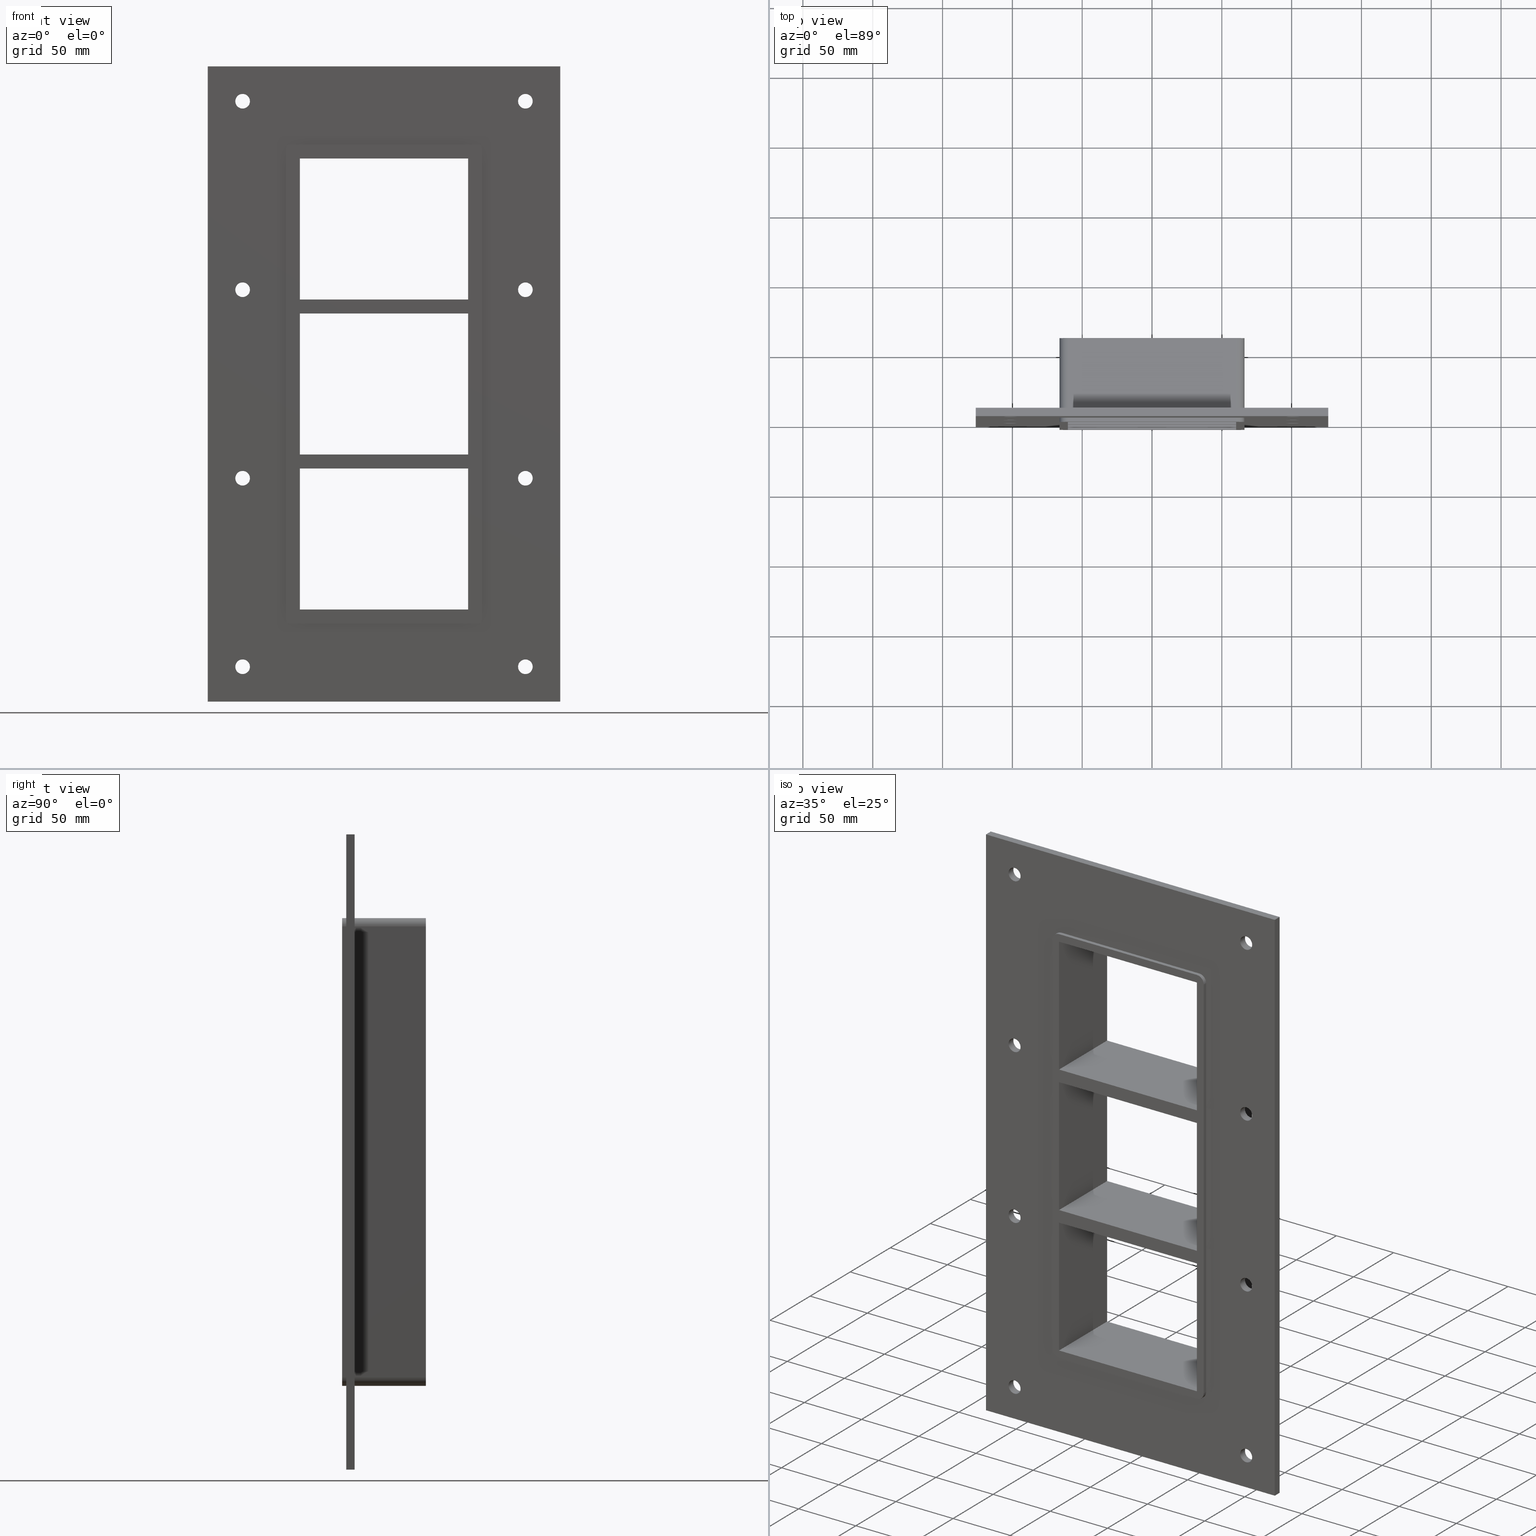
[diagram: canonical four-view strip — front | top / right | iso, engineering-drawing reading convention]
A machine part, canonical four-view strip (front | top / right | iso — engineering-drawing reading convention). The complete STEP part file that produces these views, byte-faithful:
ISO-10303-21;
HEADER;
/****************************************************************
 * Generated by software with PDElib inside                    *
 * PDElib Version v51a, created Wed 11/30/2011                  *
 * ITI Transcendata (http://www.transcendata.com/)              *
 ****************************************************************/
FILE_DESCRIPTION((''),'2;1');
FILE_NAME('L:\\roxtec-se\\Projects\\Ongoing_Projects\\12403 Transit Designer\\Product-data\\Product Data\\Reviwed & Approved\\Review\\GH\\STEP\\GH2+2+2X1.stp','2015-02-20T11:02:15',('se-emikul'),(''),'Autodesk Inventor 2013','Autodesk Inventor 2013','');
FILE_SCHEMA(('AUTOMOTIVE_DESIGN { 1 0 10303 214 1 1 1 1 }'));
ENDSEC;
DATA;
#5=APPLICATION_CONTEXT('automotive design');
#6=APPLICATION_PROTOCOL_DEFINITION('International Standard','automotive_design',2001,#5);
#7=PRODUCT_CONTEXT('',#5,'mechanical');
#8=PRODUCT('GH2+2+2X1','GH2+2+2X1',$,(#7));
#9=PRODUCT_RELATED_PRODUCT_CATEGORY('part',$,(#8));
#10=PRODUCT_DEFINITION_FORMATION('',$,#8);
#11=PRODUCT_DEFINITION_CONTEXT('part definition',#5,'design');
#12=PRODUCT_DEFINITION('',$,#10,#11);
#18=(NAMED_UNIT(*)PLANE_ANGLE_UNIT()SI_UNIT($,.RADIAN.));
#19=DIMENSIONAL_EXPONENTS(0.0,0.0,0.0,0.0,0.0,0.0,0.0);
#20=PLANE_ANGLE_MEASURE_WITH_UNIT(PLANE_ANGLE_MEASURE(0.0174532925),#18);
#24=(CONVERSION_BASED_UNIT('DEGREE',#20)NAMED_UNIT(#19)PLANE_ANGLE_UNIT());
#28=(NAMED_UNIT(*)SI_UNIT($,.STERADIAN.)SOLID_ANGLE_UNIT());
#32=(LENGTH_UNIT()NAMED_UNIT(*)SI_UNIT(.MILLI.,.METRE.));
#34=UNCERTAINTY_MEASURE_WITH_UNIT(LENGTH_MEASURE(0.01),#32,'DISTANCE_ACCURACY_VALUE','');
#36=(GEOMETRIC_REPRESENTATION_CONTEXT(3)GLOBAL_UNCERTAINTY_ASSIGNED_CONTEXT((#34))GLOBAL_UNIT_ASSIGNED_CONTEXT((#24,#28,#32))REPRESENTATION_CONTEXT('None','None'));
#37=AXIS2_PLACEMENT_3D('',#38,#39,#40);
#38=CARTESIAN_POINT('',(0.0,0.0,0.0));
#39=DIRECTION('',(0.0,0.0,1.0));
#40=DIRECTION('',(1.0,0.0,0.0));
#41=SHAPE_REPRESENTATION('',(#37),#36);
#42=PRODUCT_DEFINITION_SHAPE('','',#12);
#43=SHAPE_DEFINITION_REPRESENTATION(#42,#41);
#49=(NAMED_UNIT(*)PLANE_ANGLE_UNIT()SI_UNIT($,.RADIAN.));
#50=DIMENSIONAL_EXPONENTS(0.0,0.0,0.0,0.0,0.0,0.0,0.0);
#51=PLANE_ANGLE_MEASURE_WITH_UNIT(PLANE_ANGLE_MEASURE(0.0174532925),#49);
#55=(CONVERSION_BASED_UNIT('DEGREE',#51)NAMED_UNIT(#50)PLANE_ANGLE_UNIT());
#59=(NAMED_UNIT(*)SI_UNIT($,.STERADIAN.)SOLID_ANGLE_UNIT());
#63=(LENGTH_UNIT()NAMED_UNIT(*)SI_UNIT(.MILLI.,.METRE.));
#65=UNCERTAINTY_MEASURE_WITH_UNIT(LENGTH_MEASURE(0.000001),#63,'DISTANCE_ACCURACY_VALUE','');
#67=(GEOMETRIC_REPRESENTATION_CONTEXT(3)GLOBAL_UNCERTAINTY_ASSIGNED_CONTEXT((#65))GLOBAL_UNIT_ASSIGNED_CONTEXT((#55,#59,#63))REPRESENTATION_CONTEXT('','3D'));
#68=CARTESIAN_POINT('',(-101.25000000000009,523.81413688444877,-202.5));
#69=DIRECTION('',(0.0,-1.0,0.0));
#70=DIRECTION('',(1.0,0.0,0.0));
#71=AXIS2_PLACEMENT_3D('',#68,#69,#70);
#72=CYLINDRICAL_SURFACE('',#71,5.25);
#73=CARTESIAN_POINT('',(-106.50000000000009,6.000000000000014,-202.5));
#74=VERTEX_POINT('',#73);
#75=CARTESIAN_POINT('',(-101.25000000000009,6.000000000000014,-202.5));
#76=DIRECTION('',(0.0,-1.0,0.0));
#77=DIRECTION('',(1.0,0.0,0.0));
#78=AXIS2_PLACEMENT_3D('',#75,#76,#77);
#79=CIRCLE('',#78,5.25);
#80=EDGE_CURVE('',#74,#74,#79,.T.);
#81=ORIENTED_EDGE('',*,*,#80,.F.);
#82=EDGE_LOOP('',(#81));
#83=FACE_OUTER_BOUND('',#82,.T.);
#84=CARTESIAN_POINT('',(-96.000000000000085,0.0,-202.5));
#85=VERTEX_POINT('',#84);
#86=CARTESIAN_POINT('',(-101.25000000000009,0.0,-202.5));
#87=DIRECTION('',(0.0,1.0,0.0));
#88=DIRECTION('',(1.0,0.0,0.0));
#89=AXIS2_PLACEMENT_3D('',#86,#87,#88);
#90=CIRCLE('',#89,5.25);
#91=EDGE_CURVE('',#85,#85,#90,.T.);
#92=ORIENTED_EDGE('',*,*,#91,.F.);
#93=EDGE_LOOP('',(#92));
#94=FACE_BOUND('',#93,.T.);
#95=ADVANCED_FACE('',(#83,#94),#72,.F.);
#96=CARTESIAN_POINT('',(101.24999999999991,523.81413688444877,-67.5));
#97=DIRECTION('',(0.0,-1.0,0.0));
#98=DIRECTION('',(1.0,0.0,0.0));
#99=AXIS2_PLACEMENT_3D('',#96,#97,#98);
#100=CYLINDRICAL_SURFACE('',#99,5.25);
#101=CARTESIAN_POINT('',(95.999999999999915,6.000000000000014,-67.5));
#102=VERTEX_POINT('',#101);
#103=CARTESIAN_POINT('',(101.24999999999991,6.000000000000014,-67.5));
#104=DIRECTION('',(0.0,-1.0,0.0));
#105=DIRECTION('',(1.0,0.0,0.0));
#106=AXIS2_PLACEMENT_3D('',#103,#104,#105);
#107=CIRCLE('',#106,5.25);
#108=EDGE_CURVE('',#102,#102,#107,.T.);
#109=ORIENTED_EDGE('',*,*,#108,.F.);
#110=EDGE_LOOP('',(#109));
#111=FACE_OUTER_BOUND('',#110,.T.);
#112=CARTESIAN_POINT('',(106.49999999999991,0.0,-67.5));
#113=VERTEX_POINT('',#112);
#114=CARTESIAN_POINT('',(101.24999999999991,0.0,-67.5));
#115=DIRECTION('',(0.0,1.0,0.0));
#116=DIRECTION('',(1.0,0.0,0.0));
#117=AXIS2_PLACEMENT_3D('',#114,#115,#116);
#118=CIRCLE('',#117,5.25);
#119=EDGE_CURVE('',#113,#113,#118,.T.);
#120=ORIENTED_EDGE('',*,*,#119,.F.);
#121=EDGE_LOOP('',(#120));
#122=FACE_BOUND('',#121,.T.);
#123=ADVANCED_FACE('',(#111,#122),#100,.F.);
#124=CARTESIAN_POINT('',(-101.25000000000009,523.81413688444877,-67.5));
#125=DIRECTION('',(0.0,-1.0,0.0));
#126=DIRECTION('',(1.0,0.0,0.0));
#127=AXIS2_PLACEMENT_3D('',#124,#125,#126);
#128=CYLINDRICAL_SURFACE('',#127,5.25);
#129=CARTESIAN_POINT('',(-106.50000000000009,6.000000000000014,-67.5));
#130=VERTEX_POINT('',#129);
#131=CARTESIAN_POINT('',(-101.25000000000009,6.000000000000014,-67.5));
#132=DIRECTION('',(0.0,-1.0,0.0));
#133=DIRECTION('',(1.0,0.0,0.0));
#134=AXIS2_PLACEMENT_3D('',#131,#132,#133);
#135=CIRCLE('',#134,5.25);
#136=EDGE_CURVE('',#130,#130,#135,.T.);
#137=ORIENTED_EDGE('',*,*,#136,.F.);
#138=EDGE_LOOP('',(#137));
#139=FACE_OUTER_BOUND('',#138,.T.);
#140=CARTESIAN_POINT('',(-96.000000000000085,0.0,-67.5));
#141=VERTEX_POINT('',#140);
#142=CARTESIAN_POINT('',(-101.25000000000009,0.0,-67.5));
#143=DIRECTION('',(0.0,1.0,0.0));
#144=DIRECTION('',(1.0,0.0,0.0));
#145=AXIS2_PLACEMENT_3D('',#142,#143,#144);
#146=CIRCLE('',#145,5.25);
#147=EDGE_CURVE('',#141,#141,#146,.T.);
#148=ORIENTED_EDGE('',*,*,#147,.F.);
#149=EDGE_LOOP('',(#148));
#150=FACE_BOUND('',#149,.T.);
#151=ADVANCED_FACE('',(#139,#150),#128,.F.);
#152=CARTESIAN_POINT('',(101.24999999999991,523.81413688444877,67.5));
#153=DIRECTION('',(0.0,-1.0,0.0));
#154=DIRECTION('',(1.0,0.0,0.0));
#155=AXIS2_PLACEMENT_3D('',#152,#153,#154);
#156=CYLINDRICAL_SURFACE('',#155,5.25);
#157=CARTESIAN_POINT('',(95.999999999999915,6.000000000000014,67.5));
#158=VERTEX_POINT('',#157);
#159=CARTESIAN_POINT('',(101.24999999999991,6.000000000000014,67.5));
#160=DIRECTION('',(0.0,-1.0,0.0));
#161=DIRECTION('',(1.0,0.0,0.0));
#162=AXIS2_PLACEMENT_3D('',#159,#160,#161);
#163=CIRCLE('',#162,5.25);
#164=EDGE_CURVE('',#158,#158,#163,.T.);
#165=ORIENTED_EDGE('',*,*,#164,.F.);
#166=EDGE_LOOP('',(#165));
#167=FACE_OUTER_BOUND('',#166,.T.);
#168=CARTESIAN_POINT('',(106.49999999999991,0.0,67.5));
#169=VERTEX_POINT('',#168);
#170=CARTESIAN_POINT('',(101.24999999999991,0.0,67.5));
#171=DIRECTION('',(0.0,1.0,0.0));
#172=DIRECTION('',(1.0,0.0,0.0));
#173=AXIS2_PLACEMENT_3D('',#170,#171,#172);
#174=CIRCLE('',#173,5.25);
#175=EDGE_CURVE('',#169,#169,#174,.T.);
#176=ORIENTED_EDGE('',*,*,#175,.F.);
#177=EDGE_LOOP('',(#176));
#178=FACE_BOUND('',#177,.T.);
#179=ADVANCED_FACE('',(#167,#178),#156,.F.);
#180=CARTESIAN_POINT('',(-101.25000000000009,523.81413688444877,67.5));
#181=DIRECTION('',(0.0,-1.0,0.0));
#182=DIRECTION('',(1.0,0.0,0.0));
#183=AXIS2_PLACEMENT_3D('',#180,#181,#182);
#184=CYLINDRICAL_SURFACE('',#183,5.25);
#185=CARTESIAN_POINT('',(-106.50000000000009,6.000000000000014,67.5));
#186=VERTEX_POINT('',#185);
#187=CARTESIAN_POINT('',(-101.25000000000009,6.000000000000014,67.5));
#188=DIRECTION('',(0.0,-1.0,0.0));
#189=DIRECTION('',(1.0,0.0,0.0));
#190=AXIS2_PLACEMENT_3D('',#187,#188,#189);
#191=CIRCLE('',#190,5.25);
#192=EDGE_CURVE('',#186,#186,#191,.T.);
#193=ORIENTED_EDGE('',*,*,#192,.F.);
#194=EDGE_LOOP('',(#193));
#195=FACE_OUTER_BOUND('',#194,.T.);
#196=CARTESIAN_POINT('',(-96.000000000000085,0.0,67.5));
#197=VERTEX_POINT('',#196);
#198=CARTESIAN_POINT('',(-101.25000000000009,0.0,67.5));
#199=DIRECTION('',(0.0,1.0,0.0));
#200=DIRECTION('',(1.0,0.0,0.0));
#201=AXIS2_PLACEMENT_3D('',#198,#199,#200);
#202=CIRCLE('',#201,5.25);
#203=EDGE_CURVE('',#197,#197,#202,.T.);
#204=ORIENTED_EDGE('',*,*,#203,.F.);
#205=EDGE_LOOP('',(#204));
#206=FACE_BOUND('',#205,.T.);
#207=ADVANCED_FACE('',(#195,#206),#184,.F.);
#208=CARTESIAN_POINT('',(101.24999999999993,523.81413688444877,-202.5));
#209=DIRECTION('',(0.0,-1.0,0.0));
#210=DIRECTION('',(1.0,0.0,0.0));
#211=AXIS2_PLACEMENT_3D('',#208,#209,#210);
#212=CYLINDRICAL_SURFACE('',#211,5.25);
#213=CARTESIAN_POINT('',(95.999999999999929,6.000000000000014,-202.5));
#214=VERTEX_POINT('',#213);
#215=CARTESIAN_POINT('',(101.24999999999993,6.000000000000014,-202.5));
#216=DIRECTION('',(0.0,-1.0,0.0));
#217=DIRECTION('',(1.0,0.0,0.0));
#218=AXIS2_PLACEMENT_3D('',#215,#216,#217);
#219=CIRCLE('',#218,5.25);
#220=EDGE_CURVE('',#214,#214,#219,.T.);
#221=ORIENTED_EDGE('',*,*,#220,.F.);
#222=EDGE_LOOP('',(#221));
#223=FACE_OUTER_BOUND('',#222,.T.);
#224=CARTESIAN_POINT('',(106.49999999999993,0.0,-202.5));
#225=VERTEX_POINT('',#224);
#226=CARTESIAN_POINT('',(101.24999999999993,0.0,-202.5));
#227=DIRECTION('',(0.0,1.0,0.0));
#228=DIRECTION('',(1.0,0.0,0.0));
#229=AXIS2_PLACEMENT_3D('',#226,#227,#228);
#230=CIRCLE('',#229,5.25);
#231=EDGE_CURVE('',#225,#225,#230,.T.);
#232=ORIENTED_EDGE('',*,*,#231,.F.);
#233=EDGE_LOOP('',(#232));
#234=FACE_BOUND('',#233,.T.);
#235=ADVANCED_FACE('',(#223,#234),#212,.F.);
#236=CARTESIAN_POINT('',(-101.25000000000009,523.81413688444877,202.5));
#237=DIRECTION('',(0.0,-1.0,0.0));
#238=DIRECTION('',(1.0,0.0,0.0));
#239=AXIS2_PLACEMENT_3D('',#236,#237,#238);
#240=CYLINDRICAL_SURFACE('',#239,5.25);
#241=CARTESIAN_POINT('',(-106.50000000000009,6.000000000000014,202.5));
#242=VERTEX_POINT('',#241);
#243=CARTESIAN_POINT('',(-101.25000000000009,6.000000000000014,202.5));
#244=DIRECTION('',(0.0,-1.0,0.0));
#245=DIRECTION('',(1.0,0.0,0.0));
#246=AXIS2_PLACEMENT_3D('',#243,#244,#245);
#247=CIRCLE('',#246,5.25);
#248=EDGE_CURVE('',#242,#242,#247,.T.);
#249=ORIENTED_EDGE('',*,*,#248,.F.);
#250=EDGE_LOOP('',(#249));
#251=FACE_OUTER_BOUND('',#250,.T.);
#252=CARTESIAN_POINT('',(-96.000000000000085,0.0,202.5));
#253=VERTEX_POINT('',#252);
#254=CARTESIAN_POINT('',(-101.25000000000009,0.0,202.5));
#255=DIRECTION('',(0.0,1.0,0.0));
#256=DIRECTION('',(1.0,0.0,0.0));
#257=AXIS2_PLACEMENT_3D('',#254,#255,#256);
#258=CIRCLE('',#257,5.25);
#259=EDGE_CURVE('',#253,#253,#258,.T.);
#260=ORIENTED_EDGE('',*,*,#259,.F.);
#261=EDGE_LOOP('',(#260));
#262=FACE_BOUND('',#261,.T.);
#263=ADVANCED_FACE('',(#251,#262),#240,.F.);
#264=CARTESIAN_POINT('',(101.24999999999991,523.81413688444877,202.5));
#265=DIRECTION('',(0.0,-1.0,0.0));
#266=DIRECTION('',(1.0,0.0,0.0));
#267=AXIS2_PLACEMENT_3D('',#264,#265,#266);
#268=CYLINDRICAL_SURFACE('',#267,5.25);
#269=CARTESIAN_POINT('',(95.999999999999915,6.000000000000014,202.5));
#270=VERTEX_POINT('',#269);
#271=CARTESIAN_POINT('',(101.24999999999991,6.000000000000014,202.5));
#272=DIRECTION('',(0.0,-1.0,0.0));
#273=DIRECTION('',(1.0,0.0,0.0));
#274=AXIS2_PLACEMENT_3D('',#271,#272,#273);
#275=CIRCLE('',#274,5.25);
#276=EDGE_CURVE('',#270,#270,#275,.T.);
#277=ORIENTED_EDGE('',*,*,#276,.F.);
#278=EDGE_LOOP('',(#277));
#279=FACE_OUTER_BOUND('',#278,.T.);
#280=CARTESIAN_POINT('',(106.49999999999991,0.0,202.5));
#281=VERTEX_POINT('',#280);
#282=CARTESIAN_POINT('',(101.24999999999991,0.0,202.5));
#283=DIRECTION('',(0.0,1.0,0.0));
#284=DIRECTION('',(1.0,0.0,0.0));
#285=AXIS2_PLACEMENT_3D('',#282,#283,#284);
#286=CIRCLE('',#285,5.25);
#287=EDGE_CURVE('',#281,#281,#286,.T.);
#288=ORIENTED_EDGE('',*,*,#287,.F.);
#289=EDGE_LOOP('',(#288));
#290=FACE_BOUND('',#289,.T.);
#291=ADVANCED_FACE('',(#279,#290),#268,.F.);
#292=CARTESIAN_POINT('',(60.249999999996362,-3.0,50.499999999989214));
#293=DIRECTION('',(0.0,0.0,-1.0));
#294=DIRECTION('',(-1.0,0.0,0.0));
#295=AXIS2_PLACEMENT_3D('',#292,#293,#294);
#296=PLANE('',#295);
#297=CARTESIAN_POINT('',(60.249999999996362,-3.0,50.499999999989214));
#298=VERTEX_POINT('',#297);
#299=CARTESIAN_POINT('',(-60.249999999997058,-3.0,50.4999999999891));
#300=VERTEX_POINT('',#299);
#301=CARTESIAN_POINT('',(60.249999999996362,-3.0,50.499999999989214));
#302=DIRECTION('',(-1.0,0.0,0.0));
#303=VECTOR('',#302,120.49999999999342);
#304=LINE('',#301,#303);
#305=EDGE_CURVE('',#298,#300,#304,.T.);
#306=ORIENTED_EDGE('',*,*,#305,.T.);
#307=CARTESIAN_POINT('',(-60.249999999997058,57.0,50.4999999999891));
#308=VERTEX_POINT('',#307);
#309=CARTESIAN_POINT('',(-60.249999999999986,57.000000000000007,50.499999999989093));
#310=DIRECTION('',(0.0,-1.0,0.0));
#311=VECTOR('',#310,60.000000000000007);
#312=LINE('',#309,#311);
#313=EDGE_CURVE('',#308,#300,#312,.T.);
#314=ORIENTED_EDGE('',*,*,#313,.F.);
#315=CARTESIAN_POINT('',(60.249999999996362,57.0,50.499999999989214));
#316=VERTEX_POINT('',#315);
#317=CARTESIAN_POINT('',(60.249999999996362,57.0,50.499999999989214));
#318=DIRECTION('',(-1.0,0.0,0.0));
#319=VECTOR('',#318,120.49999999999342);
#320=LINE('',#317,#319);
#321=EDGE_CURVE('',#316,#308,#320,.T.);
#322=ORIENTED_EDGE('',*,*,#321,.F.);
#323=CARTESIAN_POINT('',(60.249999999999986,-3.0,50.499999999989207));
#324=DIRECTION('',(0.0,1.0,0.0));
#325=VECTOR('',#324,60.000000000000007);
#326=LINE('',#323,#325);
#327=EDGE_CURVE('',#298,#316,#326,.T.);
#328=ORIENTED_EDGE('',*,*,#327,.F.);
#329=EDGE_LOOP('',(#306,#314,#322,#328));
#330=FACE_OUTER_BOUND('',#329,.T.);
#331=ADVANCED_FACE('',(#330),#296,.T.);
#332=CARTESIAN_POINT('',(-60.249999999997058,-3.0,60.500000000000469));
#333=DIRECTION('',(0.0,0.0,1.0));
#334=DIRECTION('',(1.0,0.0,0.0));
#335=AXIS2_PLACEMENT_3D('',#332,#333,#334);
#336=PLANE('',#335);
#337=CARTESIAN_POINT('',(-60.249999999997058,-3.0,60.500000000000469));
#338=VERTEX_POINT('',#337);
#339=CARTESIAN_POINT('',(60.249999999999027,-3.0,60.500000000000469));
#340=VERTEX_POINT('',#339);
#341=CARTESIAN_POINT('',(-60.249999999997058,-3.0,60.500000000000469));
#342=DIRECTION('',(1.0,0.0,0.0));
#343=VECTOR('',#342,120.49999999999608);
#344=LINE('',#341,#343);
#345=EDGE_CURVE('',#338,#340,#344,.T.);
#346=ORIENTED_EDGE('',*,*,#345,.T.);
#347=CARTESIAN_POINT('',(60.249999999999027,57.0,60.500000000000469));
#348=VERTEX_POINT('',#347);
#349=CARTESIAN_POINT('',(60.249999999999986,57.000000000000007,60.500000000000469));
#350=DIRECTION('',(0.0,-1.0,0.0));
#351=VECTOR('',#350,60.000000000000007);
#352=LINE('',#349,#351);
#353=EDGE_CURVE('',#348,#340,#352,.T.);
#354=ORIENTED_EDGE('',*,*,#353,.F.);
#355=CARTESIAN_POINT('',(-60.249999999997058,57.0,60.500000000000469));
#356=VERTEX_POINT('',#355);
#357=CARTESIAN_POINT('',(-60.249999999997058,57.0,60.500000000000469));
#358=DIRECTION('',(1.0,0.0,0.0));
#359=VECTOR('',#358,120.49999999999608);
#360=LINE('',#357,#359);
#361=EDGE_CURVE('',#356,#348,#360,.T.);
#362=ORIENTED_EDGE('',*,*,#361,.F.);
#363=CARTESIAN_POINT('',(-60.249999999999986,-3.0,60.500000000000469));
#364=DIRECTION('',(0.0,1.0,0.0));
#365=VECTOR('',#364,60.000000000000007);
#366=LINE('',#363,#365);
#367=EDGE_CURVE('',#338,#356,#366,.T.);
#368=ORIENTED_EDGE('',*,*,#367,.F.);
#369=EDGE_LOOP('',(#346,#354,#362,#368));
#370=FACE_OUTER_BOUND('',#369,.T.);
#371=ADVANCED_FACE('',(#370),#336,.T.);
#372=CARTESIAN_POINT('',(-60.249999999999986,0.0,-161.5));
#373=DIRECTION('',(-1.0,0.0,0.0));
#374=DIRECTION('',(0.0,0.0,1.0));
#375=AXIS2_PLACEMENT_3D('',#372,#373,#374);
#376=PLANE('',#375);
#377=ORIENTED_EDGE('',*,*,#367,.T.);
#378=CARTESIAN_POINT('',(-60.249999999999986,57.0,161.5));
#379=VERTEX_POINT('',#378);
#380=CARTESIAN_POINT('',(-60.249999999999986,57.0,161.49999999999997));
#381=DIRECTION('',(0.0,0.0,-1.0));
#382=VECTOR('',#381,100.99999999999952);
#383=LINE('',#380,#382);
#384=EDGE_CURVE('',#379,#356,#383,.T.);
#385=ORIENTED_EDGE('',*,*,#384,.F.);
#386=CARTESIAN_POINT('',(-60.249999999999986,-3.0,161.5));
#387=VERTEX_POINT('',#386);
#388=CARTESIAN_POINT('',(-60.249999999999986,-3.0,161.5));
#389=DIRECTION('',(0.0,1.0,0.0));
#390=VECTOR('',#389,60.0);
#391=LINE('',#388,#390);
#392=EDGE_CURVE('',#387,#379,#391,.T.);
#393=ORIENTED_EDGE('',*,*,#392,.F.);
#394=CARTESIAN_POINT('',(-60.249999999999986,-3.0,60.500000000000455));
#395=DIRECTION('',(0.0,0.0,1.0));
#396=VECTOR('',#395,100.99999999999952);
#397=LINE('',#394,#396);
#398=EDGE_CURVE('',#338,#387,#397,.T.);
#399=ORIENTED_EDGE('',*,*,#398,.F.);
#400=EDGE_LOOP('',(#377,#385,#393,#399));
#401=FACE_OUTER_BOUND('',#400,.T.);
#402=ADVANCED_FACE('',(#401),#376,.F.);
#403=CARTESIAN_POINT('',(60.249999999999986,0.0,161.5));
#404=DIRECTION('',(1.0,0.0,0.0));
#405=DIRECTION('',(0.0,0.0,-1.0));
#406=AXIS2_PLACEMENT_3D('',#403,#404,#405);
#407=PLANE('',#406);
#408=ORIENTED_EDGE('',*,*,#327,.T.);
#409=CARTESIAN_POINT('',(60.249999999999027,57.0,-50.499999999999545));
#410=VERTEX_POINT('',#409);
#411=CARTESIAN_POINT('',(60.249999999999986,57.0,-50.499999999999545));
#412=DIRECTION('',(0.0,0.0,1.0));
#413=VECTOR('',#412,100.99999999998877);
#414=LINE('',#411,#413);
#415=EDGE_CURVE('',#410,#316,#414,.T.);
#416=ORIENTED_EDGE('',*,*,#415,.F.);
#417=CARTESIAN_POINT('',(60.249999999999027,-3.0,-50.499999999999545));
#418=VERTEX_POINT('',#417);
#419=CARTESIAN_POINT('',(60.249999999999986,57.000000000000007,-50.499999999999545));
#420=DIRECTION('',(0.0,-1.0,0.0));
#421=VECTOR('',#420,60.000000000000007);
#422=LINE('',#419,#421);
#423=EDGE_CURVE('',#410,#418,#422,.T.);
#424=ORIENTED_EDGE('',*,*,#423,.T.);
#425=CARTESIAN_POINT('',(60.249999999999986,-3.0,50.499999999989221));
#426=DIRECTION('',(0.0,0.0,-1.0));
#427=VECTOR('',#426,100.99999999998877);
#428=LINE('',#425,#427);
#429=EDGE_CURVE('',#298,#418,#428,.T.);
#430=ORIENTED_EDGE('',*,*,#429,.F.);
#431=EDGE_LOOP('',(#408,#416,#424,#430));
#432=FACE_OUTER_BOUND('',#431,.T.);
#433=ADVANCED_FACE('',(#432),#407,.F.);
#434=CARTESIAN_POINT('',(60.249999999999986,0.0,161.5));
#435=DIRECTION('',(1.0,0.0,0.0));
#436=DIRECTION('',(0.0,0.0,-1.0));
#437=AXIS2_PLACEMENT_3D('',#434,#435,#436);
#438=PLANE('',#437);
#439=ORIENTED_EDGE('',*,*,#353,.T.);
#440=CARTESIAN_POINT('',(60.249999999999986,-3.0,161.5));
#441=VERTEX_POINT('',#440);
#442=CARTESIAN_POINT('',(60.249999999999986,-3.0,161.5));
#443=DIRECTION('',(0.0,0.0,-1.0));
#444=VECTOR('',#443,100.99999999999952);
#445=LINE('',#442,#444);
#446=EDGE_CURVE('',#441,#340,#445,.T.);
#447=ORIENTED_EDGE('',*,*,#446,.F.);
#448=CARTESIAN_POINT('',(60.249999999999986,57.0,161.5));
#449=VERTEX_POINT('',#448);
#450=CARTESIAN_POINT('',(60.249999999999986,-3.0,161.5));
#451=DIRECTION('',(0.0,1.0,0.0));
#452=VECTOR('',#451,60.0);
#453=LINE('',#450,#452);
#454=EDGE_CURVE('',#441,#449,#453,.T.);
#455=ORIENTED_EDGE('',*,*,#454,.T.);
#456=CARTESIAN_POINT('',(60.249999999999986,57.0,60.500000000000476));
#457=DIRECTION('',(0.0,0.0,1.0));
#458=VECTOR('',#457,100.99999999999952);
#459=LINE('',#456,#458);
#460=EDGE_CURVE('',#348,#449,#459,.T.);
#461=ORIENTED_EDGE('',*,*,#460,.F.);
#462=EDGE_LOOP('',(#439,#447,#455,#461));
#463=FACE_OUTER_BOUND('',#462,.T.);
#464=ADVANCED_FACE('',(#463),#438,.F.);
#465=CARTESIAN_POINT('',(60.249999999996362,-3.0,-60.5000000000108));
#466=DIRECTION('',(0.0,0.0,-1.0));
#467=DIRECTION('',(-1.0,0.0,0.0));
#468=AXIS2_PLACEMENT_3D('',#465,#466,#467);
#469=PLANE('',#468);
#470=CARTESIAN_POINT('',(60.249999999996362,-3.0,-60.5000000000108));
#471=VERTEX_POINT('',#470);
#472=CARTESIAN_POINT('',(-60.249999999997058,-3.0,-60.500000000010914));
#473=VERTEX_POINT('',#472);
#474=CARTESIAN_POINT('',(60.249999999996362,-3.0,-60.5000000000108));
#475=DIRECTION('',(-1.0,0.0,0.0));
#476=VECTOR('',#475,120.49999999999342);
#477=LINE('',#474,#476);
#478=EDGE_CURVE('',#471,#473,#477,.T.);
#479=ORIENTED_EDGE('',*,*,#478,.T.);
#480=CARTESIAN_POINT('',(-60.249999999997058,57.0,-60.500000000010914));
#481=VERTEX_POINT('',#480);
#482=CARTESIAN_POINT('',(-60.249999999999986,57.000000000000007,-60.500000000010928));
#483=DIRECTION('',(0.0,-1.0,0.0));
#484=VECTOR('',#483,60.000000000000007);
#485=LINE('',#482,#484);
#486=EDGE_CURVE('',#481,#473,#485,.T.);
#487=ORIENTED_EDGE('',*,*,#486,.F.);
#488=CARTESIAN_POINT('',(60.249999999996362,57.0,-60.5000000000108));
#489=VERTEX_POINT('',#488);
#490=CARTESIAN_POINT('',(60.249999999996362,57.0,-60.5000000000108));
#491=DIRECTION('',(-1.0,0.0,0.0));
#492=VECTOR('',#491,120.49999999999342);
#493=LINE('',#490,#492);
#494=EDGE_CURVE('',#489,#481,#493,.T.);
#495=ORIENTED_EDGE('',*,*,#494,.F.);
#496=CARTESIAN_POINT('',(60.249999999999986,-3.0,-60.500000000010807));
#497=DIRECTION('',(0.0,1.0,0.0));
#498=VECTOR('',#497,60.000000000000007);
#499=LINE('',#496,#498);
#500=EDGE_CURVE('',#471,#489,#499,.T.);
#501=ORIENTED_EDGE('',*,*,#500,.F.);
#502=EDGE_LOOP('',(#479,#487,#495,#501));
#503=FACE_OUTER_BOUND('',#502,.T.);
#504=ADVANCED_FACE('',(#503),#469,.T.);
#505=CARTESIAN_POINT('',(-60.249999999997058,-3.0,-50.499999999999545));
#506=DIRECTION('',(0.0,0.0,1.0));
#507=DIRECTION('',(1.0,0.0,0.0));
#508=AXIS2_PLACEMENT_3D('',#505,#506,#507);
#509=PLANE('',#508);
#510=CARTESIAN_POINT('',(-60.249999999997058,-3.0,-50.499999999999545));
#511=VERTEX_POINT('',#510);
#512=CARTESIAN_POINT('',(-60.249999999997058,-3.0,-50.499999999999545));
#513=DIRECTION('',(1.0,0.0,0.0));
#514=VECTOR('',#513,120.49999999999608);
#515=LINE('',#512,#514);
#516=EDGE_CURVE('',#511,#418,#515,.T.);
#517=ORIENTED_EDGE('',*,*,#516,.T.);
#518=ORIENTED_EDGE('',*,*,#423,.F.);
#519=CARTESIAN_POINT('',(-60.249999999997058,57.0,-50.499999999999545));
#520=VERTEX_POINT('',#519);
#521=CARTESIAN_POINT('',(-60.249999999997058,57.0,-50.499999999999545));
#522=DIRECTION('',(1.0,0.0,0.0));
#523=VECTOR('',#522,120.49999999999608);
#524=LINE('',#521,#523);
#525=EDGE_CURVE('',#520,#410,#524,.T.);
#526=ORIENTED_EDGE('',*,*,#525,.F.);
#527=CARTESIAN_POINT('',(-60.249999999999986,-3.0,-50.499999999999545));
#528=DIRECTION('',(0.0,1.0,0.0));
#529=VECTOR('',#528,60.000000000000007);
#530=LINE('',#527,#529);
#531=EDGE_CURVE('',#511,#520,#530,.T.);
#532=ORIENTED_EDGE('',*,*,#531,.F.);
#533=EDGE_LOOP('',(#517,#518,#526,#532));
#534=FACE_OUTER_BOUND('',#533,.T.);
#535=ADVANCED_FACE('',(#534),#509,.T.);
#536=CARTESIAN_POINT('',(-60.249999999999986,0.0,-161.5));
#537=DIRECTION('',(-1.0,0.0,0.0));
#538=DIRECTION('',(0.0,0.0,1.0));
#539=AXIS2_PLACEMENT_3D('',#536,#537,#538);
#540=PLANE('',#539);
#541=ORIENTED_EDGE('',*,*,#313,.T.);
#542=CARTESIAN_POINT('',(-60.249999999999986,-3.0,-50.499999999999552));
#543=DIRECTION('',(0.0,0.0,1.0));
#544=VECTOR('',#543,100.99999999998863);
#545=LINE('',#542,#544);
#546=EDGE_CURVE('',#511,#300,#545,.T.);
#547=ORIENTED_EDGE('',*,*,#546,.F.);
#548=ORIENTED_EDGE('',*,*,#531,.T.);
#549=CARTESIAN_POINT('',(-60.249999999999986,57.0,50.499999999989086));
#550=DIRECTION('',(0.0,0.0,-1.0));
#551=VECTOR('',#550,100.99999999998863);
#552=LINE('',#549,#551);
#553=EDGE_CURVE('',#308,#520,#552,.T.);
#554=ORIENTED_EDGE('',*,*,#553,.F.);
#555=EDGE_LOOP('',(#541,#547,#548,#554));
#556=FACE_OUTER_BOUND('',#555,.T.);
#557=ADVANCED_FACE('',(#556),#540,.F.);
#558=CARTESIAN_POINT('',(60.249999999999986,0.0,161.5));
#559=DIRECTION('',(1.0,0.0,0.0));
#560=DIRECTION('',(0.0,0.0,-1.0));
#561=AXIS2_PLACEMENT_3D('',#558,#559,#560);
#562=PLANE('',#561);
#563=ORIENTED_EDGE('',*,*,#500,.T.);
#564=CARTESIAN_POINT('',(60.249999999999986,57.0,-161.5));
#565=VERTEX_POINT('',#564);
#566=CARTESIAN_POINT('',(60.249999999999986,57.0,-161.49999999999997));
#567=DIRECTION('',(0.0,0.0,1.0));
#568=VECTOR('',#567,100.99999999998917);
#569=LINE('',#566,#568);
#570=EDGE_CURVE('',#565,#489,#569,.T.);
#571=ORIENTED_EDGE('',*,*,#570,.F.);
#572=CARTESIAN_POINT('',(60.249999999999986,-3.0,-161.5));
#573=VERTEX_POINT('',#572);
#574=CARTESIAN_POINT('',(60.249999999999986,56.999999999999993,-161.5));
#575=DIRECTION('',(0.0,-1.0,0.0));
#576=VECTOR('',#575,59.999999999999993);
#577=LINE('',#574,#576);
#578=EDGE_CURVE('',#565,#573,#577,.T.);
#579=ORIENTED_EDGE('',*,*,#578,.T.);
#580=CARTESIAN_POINT('',(60.249999999999986,-3.0,-60.5000000000108));
#581=DIRECTION('',(0.0,0.0,-1.0));
#582=VECTOR('',#581,100.99999999998917);
#583=LINE('',#580,#582);
#584=EDGE_CURVE('',#471,#573,#583,.T.);
#585=ORIENTED_EDGE('',*,*,#584,.F.);
#586=EDGE_LOOP('',(#563,#571,#579,#585));
#587=FACE_OUTER_BOUND('',#586,.T.);
#588=ADVANCED_FACE('',(#587),#562,.F.);
#589=CARTESIAN_POINT('',(0.0,6.000000000000001,0.0));
#590=DIRECTION('',(0.0,1.0,0.0));
#591=DIRECTION('',(0.0,0.0,1.0));
#592=AXIS2_PLACEMENT_3D('',#589,#590,#591);
#593=PLANE('',#592);
#594=CARTESIAN_POINT('',(-126.24999999999999,6.000000000000001,227.5));
#595=VERTEX_POINT('',#594);
#596=CARTESIAN_POINT('',(126.24999999999999,6.000000000000001,227.5));
#597=VERTEX_POINT('',#596);
#598=CARTESIAN_POINT('',(-126.24999999999999,6.000000000000001,227.5));
#599=DIRECTION('',(1.0,0.0,0.0));
#600=VECTOR('',#599,252.49999999999997);
#601=LINE('',#598,#600);
#602=EDGE_CURVE('',#595,#597,#601,.T.);
#603=ORIENTED_EDGE('',*,*,#602,.T.);
#604=CARTESIAN_POINT('',(126.24999999999999,6.000000000000001,-227.5));
#605=VERTEX_POINT('',#604);
#606=CARTESIAN_POINT('',(126.24999999999999,6.000000000000001,227.5));
#607=DIRECTION('',(0.0,0.0,-1.0));
#608=VECTOR('',#607,455.0);
#609=LINE('',#606,#608);
#610=EDGE_CURVE('',#597,#605,#609,.T.);
#611=ORIENTED_EDGE('',*,*,#610,.T.);
#612=CARTESIAN_POINT('',(-126.24999999999999,6.000000000000001,-227.5));
#613=VERTEX_POINT('',#612);
#614=CARTESIAN_POINT('',(126.24999999999999,6.000000000000001,-227.5));
#615=DIRECTION('',(-1.0,0.0,0.0));
#616=VECTOR('',#615,252.49999999999997);
#617=LINE('',#614,#616);
#618=EDGE_CURVE('',#605,#613,#617,.T.);
#619=ORIENTED_EDGE('',*,*,#618,.T.);
#620=CARTESIAN_POINT('',(-126.24999999999999,6.000000000000001,-227.5));
#621=DIRECTION('',(0.0,0.0,1.0));
#622=VECTOR('',#621,455.0);
#623=LINE('',#620,#622);
#624=EDGE_CURVE('',#613,#595,#623,.T.);
#625=ORIENTED_EDGE('',*,*,#624,.T.);
#626=EDGE_LOOP('',(#603,#611,#619,#625));
#627=FACE_OUTER_BOUND('',#626,.T.);
#628=ORIENTED_EDGE('',*,*,#80,.T.);
#629=EDGE_LOOP('',(#628));
#630=FACE_BOUND('',#629,.T.);
#631=ORIENTED_EDGE('',*,*,#108,.T.);
#632=EDGE_LOOP('',(#631));
#633=FACE_BOUND('',#632,.T.);
#634=ORIENTED_EDGE('',*,*,#136,.T.);
#635=EDGE_LOOP('',(#634));
#636=FACE_BOUND('',#635,.T.);
#637=ORIENTED_EDGE('',*,*,#164,.T.);
#638=EDGE_LOOP('',(#637));
#639=FACE_BOUND('',#638,.T.);
#640=ORIENTED_EDGE('',*,*,#192,.T.);
#641=EDGE_LOOP('',(#640));
#642=FACE_BOUND('',#641,.T.);
#643=ORIENTED_EDGE('',*,*,#220,.T.);
#644=EDGE_LOOP('',(#643));
#645=FACE_BOUND('',#644,.T.);
#646=ORIENTED_EDGE('',*,*,#248,.T.);
#647=EDGE_LOOP('',(#646));
#648=FACE_BOUND('',#647,.T.);
#649=ORIENTED_EDGE('',*,*,#276,.T.);
#650=EDGE_LOOP('',(#649));
#651=FACE_BOUND('',#650,.T.);
#652=CARTESIAN_POINT('',(-66.25,6.000000000000001,161.5));
#653=VERTEX_POINT('',#652);
#654=CARTESIAN_POINT('',(-60.25,6.000000000000001,167.5));
#655=VERTEX_POINT('',#654);
#656=CARTESIAN_POINT('',(-60.25,6.000000000000001,161.5));
#657=DIRECTION('',(0.0,1.0,0.0));
#658=DIRECTION('',(-0.707106781186546,0.0,0.707106781186549));
#659=AXIS2_PLACEMENT_3D('',#656,#657,#658);
#660=CIRCLE('',#659,6.000000000000001);
#661=EDGE_CURVE('',#653,#655,#660,.T.);
#662=ORIENTED_EDGE('',*,*,#661,.F.);
#663=CARTESIAN_POINT('',(-66.25,6.000000000000001,-161.5));
#664=VERTEX_POINT('',#663);
#665=CARTESIAN_POINT('',(-66.25,6.000000000000001,-161.5));
#666=DIRECTION('',(0.0,0.0,1.0));
#667=VECTOR('',#666,323.0);
#668=LINE('',#665,#667);
#669=EDGE_CURVE('',#664,#653,#668,.T.);
#670=ORIENTED_EDGE('',*,*,#669,.F.);
#671=CARTESIAN_POINT('',(-60.25,6.000000000000001,-167.5));
#672=VERTEX_POINT('',#671);
#673=CARTESIAN_POINT('',(-60.25,6.000000000000001,-161.5));
#674=DIRECTION('',(0.0,1.0,0.0));
#675=DIRECTION('',(-0.707106781186546,0.0,-0.707106781186549));
#676=AXIS2_PLACEMENT_3D('',#673,#674,#675);
#677=CIRCLE('',#676,6.000000000000001);
#678=EDGE_CURVE('',#672,#664,#677,.T.);
#679=ORIENTED_EDGE('',*,*,#678,.F.);
#680=CARTESIAN_POINT('',(60.25,6.000000000000001,-167.5));
#681=VERTEX_POINT('',#680);
#682=CARTESIAN_POINT('',(60.25,6.000000000000001,-167.5));
#683=DIRECTION('',(-1.0,0.0,0.0));
#684=VECTOR('',#683,120.5);
#685=LINE('',#682,#684);
#686=EDGE_CURVE('',#681,#672,#685,.T.);
#687=ORIENTED_EDGE('',*,*,#686,.F.);
#688=CARTESIAN_POINT('',(66.25,6.000000000000001,-161.5));
#689=VERTEX_POINT('',#688);
#690=CARTESIAN_POINT('',(60.25,6.000000000000001,-161.5));
#691=DIRECTION('',(0.0,1.0,0.0));
#692=DIRECTION('',(0.707106781186546,0.0,-0.707106781186549));
#693=AXIS2_PLACEMENT_3D('',#690,#691,#692);
#694=CIRCLE('',#693,6.000000000000001);
#695=EDGE_CURVE('',#689,#681,#694,.T.);
#696=ORIENTED_EDGE('',*,*,#695,.F.);
#697=CARTESIAN_POINT('',(66.25,6.000000000000001,161.5));
#698=VERTEX_POINT('',#697);
#699=CARTESIAN_POINT('',(66.25,6.000000000000001,161.5));
#700=DIRECTION('',(0.0,0.0,-1.0));
#701=VECTOR('',#700,323.0);
#702=LINE('',#699,#701);
#703=EDGE_CURVE('',#698,#689,#702,.T.);
#704=ORIENTED_EDGE('',*,*,#703,.F.);
#705=CARTESIAN_POINT('',(60.25,6.000000000000001,167.5));
#706=VERTEX_POINT('',#705);
#707=CARTESIAN_POINT('',(60.25,6.000000000000001,161.5));
#708=DIRECTION('',(0.0,1.0,0.0));
#709=DIRECTION('',(0.707106781186546,0.0,0.707106781186549));
#710=AXIS2_PLACEMENT_3D('',#707,#708,#709);
#711=CIRCLE('',#710,6.000000000000001);
#712=EDGE_CURVE('',#706,#698,#711,.T.);
#713=ORIENTED_EDGE('',*,*,#712,.F.);
#714=CARTESIAN_POINT('',(-60.25,6.000000000000001,167.5));
#715=DIRECTION('',(1.0,0.0,0.0));
#716=VECTOR('',#715,120.5);
#717=LINE('',#714,#716);
#718=EDGE_CURVE('',#655,#706,#717,.T.);
#719=ORIENTED_EDGE('',*,*,#718,.F.);
#720=EDGE_LOOP('',(#662,#670,#679,#687,#696,#704,#713,#719));
#721=FACE_BOUND('',#720,.T.);
#722=ADVANCED_FACE('',(#627,#630,#633,#636,#639,#642,#645,#648,#651,#721),#593,.T.);
#723=CARTESIAN_POINT('',(0.0,0.0,0.0));
#724=DIRECTION('',(0.0,1.0,0.0));
#725=DIRECTION('',(0.0,0.0,1.0));
#726=AXIS2_PLACEMENT_3D('',#723,#724,#725);
#727=PLANE('',#726);
#728=CARTESIAN_POINT('',(-126.24999999999999,0.0,227.5));
#729=VERTEX_POINT('',#728);
#730=CARTESIAN_POINT('',(126.24999999999999,0.0,227.5));
#731=VERTEX_POINT('',#730);
#732=CARTESIAN_POINT('',(-126.24999999999999,0.0,227.5));
#733=DIRECTION('',(1.0,0.0,0.0));
#734=VECTOR('',#733,252.49999999999997);
#735=LINE('',#732,#734);
#736=EDGE_CURVE('',#729,#731,#735,.T.);
#737=ORIENTED_EDGE('',*,*,#736,.F.);
#738=CARTESIAN_POINT('',(-126.24999999999999,0.0,-227.5));
#739=VERTEX_POINT('',#738);
#740=CARTESIAN_POINT('',(-126.24999999999999,0.0,-227.5));
#741=DIRECTION('',(0.0,0.0,1.0));
#742=VECTOR('',#741,455.0);
#743=LINE('',#740,#742);
#744=EDGE_CURVE('',#739,#729,#743,.T.);
#745=ORIENTED_EDGE('',*,*,#744,.F.);
#746=CARTESIAN_POINT('',(126.24999999999999,0.0,-227.5));
#747=VERTEX_POINT('',#746);
#748=CARTESIAN_POINT('',(126.24999999999999,0.0,-227.5));
#749=DIRECTION('',(-1.0,0.0,0.0));
#750=VECTOR('',#749,252.49999999999997);
#751=LINE('',#748,#750);
#752=EDGE_CURVE('',#747,#739,#751,.T.);
#753=ORIENTED_EDGE('',*,*,#752,.F.);
#754=CARTESIAN_POINT('',(126.24999999999999,0.0,227.5));
#755=DIRECTION('',(0.0,0.0,-1.0));
#756=VECTOR('',#755,455.0);
#757=LINE('',#754,#756);
#758=EDGE_CURVE('',#731,#747,#757,.T.);
#759=ORIENTED_EDGE('',*,*,#758,.F.);
#760=EDGE_LOOP('',(#737,#745,#753,#759));
#761=FACE_OUTER_BOUND('',#760,.T.);
#762=ORIENTED_EDGE('',*,*,#91,.T.);
#763=EDGE_LOOP('',(#762));
#764=FACE_BOUND('',#763,.T.);
#765=ORIENTED_EDGE('',*,*,#119,.T.);
#766=EDGE_LOOP('',(#765));
#767=FACE_BOUND('',#766,.T.);
#768=ORIENTED_EDGE('',*,*,#147,.T.);
#769=EDGE_LOOP('',(#768));
#770=FACE_BOUND('',#769,.T.);
#771=ORIENTED_EDGE('',*,*,#175,.T.);
#772=EDGE_LOOP('',(#771));
#773=FACE_BOUND('',#772,.T.);
#774=ORIENTED_EDGE('',*,*,#203,.T.);
#775=EDGE_LOOP('',(#774));
#776=FACE_BOUND('',#775,.T.);
#777=ORIENTED_EDGE('',*,*,#231,.T.);
#778=EDGE_LOOP('',(#777));
#779=FACE_BOUND('',#778,.T.);
#780=ORIENTED_EDGE('',*,*,#259,.T.);
#781=EDGE_LOOP('',(#780));
#782=FACE_BOUND('',#781,.T.);
#783=ORIENTED_EDGE('',*,*,#287,.T.);
#784=EDGE_LOOP('',(#783));
#785=FACE_BOUND('',#784,.T.);
#786=CARTESIAN_POINT('',(-60.25,0.0,167.5));
#787=VERTEX_POINT('',#786);
#788=CARTESIAN_POINT('',(-66.25,0.0,161.5));
#789=VERTEX_POINT('',#788);
#790=CARTESIAN_POINT('',(-60.25,0.0,161.5));
#791=DIRECTION('',(0.0,-1.0,0.0));
#792=DIRECTION('',(-0.707106781186546,0.0,0.707106781186549));
#793=AXIS2_PLACEMENT_3D('',#790,#791,#792);
#794=CIRCLE('',#793,6.000000000000001);
#795=EDGE_CURVE('',#787,#789,#794,.T.);
#796=ORIENTED_EDGE('',*,*,#795,.F.);
#797=CARTESIAN_POINT('',(60.25,0.0,167.5));
#798=VERTEX_POINT('',#797);
#799=CARTESIAN_POINT('',(60.25,0.0,167.5));
#800=DIRECTION('',(-1.0,0.0,0.0));
#801=VECTOR('',#800,120.5);
#802=LINE('',#799,#801);
#803=EDGE_CURVE('',#798,#787,#802,.T.);
#804=ORIENTED_EDGE('',*,*,#803,.F.);
#805=CARTESIAN_POINT('',(66.25,0.0,161.5));
#806=VERTEX_POINT('',#805);
#807=CARTESIAN_POINT('',(60.25,0.0,161.5));
#808=DIRECTION('',(0.0,-1.0,0.0));
#809=DIRECTION('',(0.707106781186546,0.0,0.707106781186549));
#810=AXIS2_PLACEMENT_3D('',#807,#808,#809);
#811=CIRCLE('',#810,6.000000000000001);
#812=EDGE_CURVE('',#806,#798,#811,.T.);
#813=ORIENTED_EDGE('',*,*,#812,.F.);
#814=CARTESIAN_POINT('',(66.25,0.0,-161.5));
#815=VERTEX_POINT('',#814);
#816=CARTESIAN_POINT('',(66.25,0.0,-161.5));
#817=DIRECTION('',(0.0,0.0,1.0));
#818=VECTOR('',#817,323.0);
#819=LINE('',#816,#818);
#820=EDGE_CURVE('',#815,#806,#819,.T.);
#821=ORIENTED_EDGE('',*,*,#820,.F.);
#822=CARTESIAN_POINT('',(60.25,0.0,-167.5));
#823=VERTEX_POINT('',#822);
#824=CARTESIAN_POINT('',(60.25,0.0,-161.5));
#825=DIRECTION('',(0.0,-1.0,0.0));
#826=DIRECTION('',(0.707106781186546,0.0,-0.707106781186549));
#827=AXIS2_PLACEMENT_3D('',#824,#825,#826);
#828=CIRCLE('',#827,6.000000000000001);
#829=EDGE_CURVE('',#823,#815,#828,.T.);
#830=ORIENTED_EDGE('',*,*,#829,.F.);
#831=CARTESIAN_POINT('',(-60.25,0.0,-167.5));
#832=VERTEX_POINT('',#831);
#833=CARTESIAN_POINT('',(-60.25,0.0,-167.5));
#834=DIRECTION('',(1.0,0.0,0.0));
#835=VECTOR('',#834,120.5);
#836=LINE('',#833,#835);
#837=EDGE_CURVE('',#832,#823,#836,.T.);
#838=ORIENTED_EDGE('',*,*,#837,.F.);
#839=CARTESIAN_POINT('',(-66.25,0.0,-161.5));
#840=VERTEX_POINT('',#839);
#841=CARTESIAN_POINT('',(-60.25,0.0,-161.5));
#842=DIRECTION('',(0.0,-1.0,0.0));
#843=DIRECTION('',(-0.707106781186546,0.0,-0.707106781186549));
#844=AXIS2_PLACEMENT_3D('',#841,#842,#843);
#845=CIRCLE('',#844,6.000000000000001);
#846=EDGE_CURVE('',#840,#832,#845,.T.);
#847=ORIENTED_EDGE('',*,*,#846,.F.);
#848=CARTESIAN_POINT('',(-66.25,0.0,161.5));
#849=DIRECTION('',(0.0,0.0,-1.0));
#850=VECTOR('',#849,323.0);
#851=LINE('',#848,#850);
#852=EDGE_CURVE('',#789,#840,#851,.T.);
#853=ORIENTED_EDGE('',*,*,#852,.F.);
#854=EDGE_LOOP('',(#796,#804,#813,#821,#830,#838,#847,#853));
#855=FACE_BOUND('',#854,.T.);
#856=ADVANCED_FACE('',(#761,#764,#767,#770,#773,#776,#779,#782,#785,#855),#727,.F.);
#857=CARTESIAN_POINT('',(-126.24999999999999,0.0,-227.5));
#858=DIRECTION('',(-1.0,0.0,0.0));
#859=DIRECTION('',(0.0,0.0,1.0));
#860=AXIS2_PLACEMENT_3D('',#857,#858,#859);
#861=PLANE('',#860);
#862=ORIENTED_EDGE('',*,*,#744,.T.);
#863=CARTESIAN_POINT('',(-126.24999999999999,0.0,227.5));
#864=DIRECTION('',(0.0,1.0,0.0));
#865=VECTOR('',#864,6.000000000000001);
#866=LINE('',#863,#865);
#867=EDGE_CURVE('',#729,#595,#866,.T.);
#868=ORIENTED_EDGE('',*,*,#867,.T.);
#869=ORIENTED_EDGE('',*,*,#624,.F.);
#870=CARTESIAN_POINT('',(-126.24999999999999,0.0,-227.5));
#871=DIRECTION('',(0.0,1.0,0.0));
#872=VECTOR('',#871,6.000000000000001);
#873=LINE('',#870,#872);
#874=EDGE_CURVE('',#739,#613,#873,.T.);
#875=ORIENTED_EDGE('',*,*,#874,.F.);
#876=EDGE_LOOP('',(#862,#868,#869,#875));
#877=FACE_OUTER_BOUND('',#876,.T.);
#878=ADVANCED_FACE('',(#877),#861,.T.);
#879=CARTESIAN_POINT('',(126.24999999999999,0.0,-227.5));
#880=DIRECTION('',(0.0,0.0,-1.0));
#881=DIRECTION('',(-1.0,0.0,0.0));
#882=AXIS2_PLACEMENT_3D('',#879,#880,#881);
#883=PLANE('',#882);
#884=ORIENTED_EDGE('',*,*,#752,.T.);
#885=ORIENTED_EDGE('',*,*,#874,.T.);
#886=ORIENTED_EDGE('',*,*,#618,.F.);
#887=CARTESIAN_POINT('',(126.24999999999999,0.0,-227.5));
#888=DIRECTION('',(0.0,1.0,0.0));
#889=VECTOR('',#888,6.000000000000001);
#890=LINE('',#887,#889);
#891=EDGE_CURVE('',#747,#605,#890,.T.);
#892=ORIENTED_EDGE('',*,*,#891,.F.);
#893=EDGE_LOOP('',(#884,#885,#886,#892));
#894=FACE_OUTER_BOUND('',#893,.T.);
#895=ADVANCED_FACE('',(#894),#883,.T.);
#896=CARTESIAN_POINT('',(126.24999999999999,0.0,227.5));
#897=DIRECTION('',(1.0,0.0,0.0));
#898=DIRECTION('',(0.0,0.0,-1.0));
#899=AXIS2_PLACEMENT_3D('',#896,#897,#898);
#900=PLANE('',#899);
#901=ORIENTED_EDGE('',*,*,#758,.T.);
#902=ORIENTED_EDGE('',*,*,#891,.T.);
#903=ORIENTED_EDGE('',*,*,#610,.F.);
#904=CARTESIAN_POINT('',(126.24999999999999,0.0,227.5));
#905=DIRECTION('',(0.0,1.0,0.0));
#906=VECTOR('',#905,6.000000000000001);
#907=LINE('',#904,#906);
#908=EDGE_CURVE('',#731,#597,#907,.T.);
#909=ORIENTED_EDGE('',*,*,#908,.F.);
#910=EDGE_LOOP('',(#901,#902,#903,#909));
#911=FACE_OUTER_BOUND('',#910,.T.);
#912=ADVANCED_FACE('',(#911),#900,.T.);
#913=CARTESIAN_POINT('',(-126.24999999999999,0.0,227.5));
#914=DIRECTION('',(0.0,0.0,1.0));
#915=DIRECTION('',(1.0,0.0,0.0));
#916=AXIS2_PLACEMENT_3D('',#913,#914,#915);
#917=PLANE('',#916);
#918=ORIENTED_EDGE('',*,*,#736,.T.);
#919=ORIENTED_EDGE('',*,*,#908,.T.);
#920=ORIENTED_EDGE('',*,*,#602,.F.);
#921=ORIENTED_EDGE('',*,*,#867,.F.);
#922=EDGE_LOOP('',(#918,#919,#920,#921));
#923=FACE_OUTER_BOUND('',#922,.T.);
#924=ADVANCED_FACE('',(#923),#917,.T.);
#925=CARTESIAN_POINT('',(-60.249999999999986,0.0,-161.5));
#926=DIRECTION('',(-1.0,0.0,0.0));
#927=DIRECTION('',(0.0,0.0,1.0));
#928=AXIS2_PLACEMENT_3D('',#925,#926,#927);
#929=PLANE('',#928);
#930=ORIENTED_EDGE('',*,*,#486,.T.);
#931=CARTESIAN_POINT('',(-60.249999999999986,-3.0,-161.5));
#932=VERTEX_POINT('',#931);
#933=CARTESIAN_POINT('',(-60.249999999999986,-3.0,-161.5));
#934=DIRECTION('',(0.0,0.0,1.0));
#935=VECTOR('',#934,100.99999999998909);
#936=LINE('',#933,#935);
#937=EDGE_CURVE('',#932,#473,#936,.T.);
#938=ORIENTED_EDGE('',*,*,#937,.F.);
#939=CARTESIAN_POINT('',(-60.249999999999986,57.0,-161.5));
#940=VERTEX_POINT('',#939);
#941=CARTESIAN_POINT('',(-60.249999999999986,-3.0,-161.5));
#942=DIRECTION('',(0.0,1.0,0.0));
#943=VECTOR('',#942,60.0);
#944=LINE('',#941,#943);
#945=EDGE_CURVE('',#932,#940,#944,.T.);
#946=ORIENTED_EDGE('',*,*,#945,.T.);
#947=CARTESIAN_POINT('',(-60.249999999999986,57.0,-60.500000000010921));
#948=DIRECTION('',(0.0,0.0,-1.0));
#949=VECTOR('',#948,100.99999999998909);
#950=LINE('',#947,#949);
#951=EDGE_CURVE('',#481,#940,#950,.T.);
#952=ORIENTED_EDGE('',*,*,#951,.F.);
#953=EDGE_LOOP('',(#930,#938,#946,#952));
#954=FACE_OUTER_BOUND('',#953,.T.);
#955=ADVANCED_FACE('',(#954),#929,.F.);
#956=CARTESIAN_POINT('',(60.25,0.0,-161.5));
#957=DIRECTION('',(0.0,1.0,0.0));
#958=DIRECTION('',(0.707106781186546,0.0,-0.707106781186549));
#959=AXIS2_PLACEMENT_3D('',#956,#957,#958);
#960=CYLINDRICAL_SURFACE('',#959,6.000000000000001);
#961=ORIENTED_EDGE('',*,*,#829,.T.);
#962=CARTESIAN_POINT('',(66.25,-3.0,-161.5));
#963=VERTEX_POINT('',#962);
#964=CARTESIAN_POINT('',(66.25,0.0,-161.5));
#965=DIRECTION('',(0.0,-1.0,0.0));
#966=VECTOR('',#965,3.0);
#967=LINE('',#964,#966);
#968=EDGE_CURVE('',#815,#963,#967,.T.);
#969=ORIENTED_EDGE('',*,*,#968,.T.);
#970=CARTESIAN_POINT('',(60.25,-3.0,-167.5));
#971=VERTEX_POINT('',#970);
#972=CARTESIAN_POINT('',(60.25,-3.0,-161.5));
#973=DIRECTION('',(0.0,1.0,0.0));
#974=DIRECTION('',(0.707106781186546,0.0,-0.707106781186549));
#975=AXIS2_PLACEMENT_3D('',#972,#973,#974);
#976=CIRCLE('',#975,6.000000000000001);
#977=EDGE_CURVE('',#963,#971,#976,.T.);
#978=ORIENTED_EDGE('',*,*,#977,.T.);
#979=CARTESIAN_POINT('',(60.25,-3.0,-167.5));
#980=DIRECTION('',(0.0,1.0,0.0));
#981=VECTOR('',#980,3.0);
#982=LINE('',#979,#981);
#983=EDGE_CURVE('',#971,#823,#982,.T.);
#984=ORIENTED_EDGE('',*,*,#983,.T.);
#985=EDGE_LOOP('',(#961,#969,#978,#984));
#986=FACE_OUTER_BOUND('',#985,.T.);
#987=ADVANCED_FACE('',(#986),#960,.T.);
#988=CARTESIAN_POINT('',(60.25,0.0,-161.5));
#989=DIRECTION('',(0.0,1.0,0.0));
#990=DIRECTION('',(0.707106781186546,0.0,-0.707106781186549));
#991=AXIS2_PLACEMENT_3D('',#988,#989,#990);
#992=CYLINDRICAL_SURFACE('',#991,6.000000000000001);
#993=ORIENTED_EDGE('',*,*,#695,.T.);
#994=CARTESIAN_POINT('',(60.25,57.0,-167.5));
#995=VERTEX_POINT('',#994);
#996=CARTESIAN_POINT('',(60.25,6.000000000000001,-167.5));
#997=DIRECTION('',(0.0,1.0,0.0));
#998=VECTOR('',#997,51.0);
#999=LINE('',#996,#998);
#1000=EDGE_CURVE('',#681,#995,#999,.T.);
#1001=ORIENTED_EDGE('',*,*,#1000,.T.);
#1002=CARTESIAN_POINT('',(66.25,57.0,-161.5));
#1003=VERTEX_POINT('',#1002);
#1004=CARTESIAN_POINT('',(60.25,57.0,-161.5));
#1005=DIRECTION('',(0.0,-1.0,0.0));
#1006=DIRECTION('',(0.707106781186546,0.0,-0.707106781186549));
#1007=AXIS2_PLACEMENT_3D('',#1004,#1005,#1006);
#1008=CIRCLE('',#1007,6.000000000000001);
#1009=EDGE_CURVE('',#995,#1003,#1008,.T.);
#1010=ORIENTED_EDGE('',*,*,#1009,.T.);
#1011=CARTESIAN_POINT('',(66.25,57.0,-161.5));
#1012=DIRECTION('',(0.0,-1.0,0.0));
#1013=VECTOR('',#1012,51.0);
#1014=LINE('',#1011,#1013);
#1015=EDGE_CURVE('',#1003,#689,#1014,.T.);
#1016=ORIENTED_EDGE('',*,*,#1015,.T.);
#1017=EDGE_LOOP('',(#993,#1001,#1010,#1016));
#1018=FACE_OUTER_BOUND('',#1017,.T.);
#1019=ADVANCED_FACE('',(#1018),#992,.T.);
#1020=CARTESIAN_POINT('',(66.25,0.0,-167.5));
#1021=DIRECTION('',(0.0,0.0,-1.0));
#1022=DIRECTION('',(-1.0,0.0,0.0));
#1023=AXIS2_PLACEMENT_3D('',#1020,#1021,#1022);
#1024=PLANE('',#1023);
#1025=ORIENTED_EDGE('',*,*,#837,.T.);
#1026=ORIENTED_EDGE('',*,*,#983,.F.);
#1027=CARTESIAN_POINT('',(-60.25,-3.0,-167.5));
#1028=VERTEX_POINT('',#1027);
#1029=CARTESIAN_POINT('',(-60.25,-3.0,-167.5));
#1030=DIRECTION('',(1.0,0.0,0.0));
#1031=VECTOR('',#1030,120.5);
#1032=LINE('',#1029,#1031);
#1033=EDGE_CURVE('',#1028,#971,#1032,.T.);
#1034=ORIENTED_EDGE('',*,*,#1033,.F.);
#1035=CARTESIAN_POINT('',(-60.25,0.0,-167.5));
#1036=DIRECTION('',(0.0,-1.0,0.0));
#1037=VECTOR('',#1036,3.0);
#1038=LINE('',#1035,#1037);
#1039=EDGE_CURVE('',#832,#1028,#1038,.T.);
#1040=ORIENTED_EDGE('',*,*,#1039,.F.);
#1041=EDGE_LOOP('',(#1025,#1026,#1034,#1040));
#1042=FACE_OUTER_BOUND('',#1041,.T.);
#1043=ADVANCED_FACE('',(#1042),#1024,.T.);
#1044=CARTESIAN_POINT('',(66.25,0.0,-167.5));
#1045=DIRECTION('',(0.0,0.0,-1.0));
#1046=DIRECTION('',(-1.0,0.0,0.0));
#1047=AXIS2_PLACEMENT_3D('',#1044,#1045,#1046);
#1048=PLANE('',#1047);
#1049=ORIENTED_EDGE('',*,*,#686,.T.);
#1050=CARTESIAN_POINT('',(-60.25,57.0,-167.5));
#1051=VERTEX_POINT('',#1050);
#1052=CARTESIAN_POINT('',(-60.25,57.0,-167.5));
#1053=DIRECTION('',(0.0,-1.0,0.0));
#1054=VECTOR('',#1053,51.0);
#1055=LINE('',#1052,#1054);
#1056=EDGE_CURVE('',#1051,#672,#1055,.T.);
#1057=ORIENTED_EDGE('',*,*,#1056,.F.);
#1058=CARTESIAN_POINT('',(60.25,57.0,-167.5));
#1059=DIRECTION('',(-1.0,0.0,0.0));
#1060=VECTOR('',#1059,120.5);
#1061=LINE('',#1058,#1060);
#1062=EDGE_CURVE('',#995,#1051,#1061,.T.);
#1063=ORIENTED_EDGE('',*,*,#1062,.F.);
#1064=ORIENTED_EDGE('',*,*,#1000,.F.);
#1065=EDGE_LOOP('',(#1049,#1057,#1063,#1064));
#1066=FACE_OUTER_BOUND('',#1065,.T.);
#1067=ADVANCED_FACE('',(#1066),#1048,.T.);
#1068=CARTESIAN_POINT('',(66.25,0.0,167.5));
#1069=DIRECTION('',(1.0,0.0,0.0));
#1070=DIRECTION('',(0.0,0.0,-1.0));
#1071=AXIS2_PLACEMENT_3D('',#1068,#1069,#1070);
#1072=PLANE('',#1071);
#1073=ORIENTED_EDGE('',*,*,#820,.T.);
#1074=CARTESIAN_POINT('',(66.25,-3.0,161.5));
#1075=VERTEX_POINT('',#1074);
#1076=CARTESIAN_POINT('',(66.25,-3.0,161.5));
#1077=DIRECTION('',(0.0,1.0,0.0));
#1078=VECTOR('',#1077,3.0);
#1079=LINE('',#1076,#1078);
#1080=EDGE_CURVE('',#1075,#806,#1079,.T.);
#1081=ORIENTED_EDGE('',*,*,#1080,.F.);
#1082=CARTESIAN_POINT('',(66.25,-3.0,-161.5));
#1083=DIRECTION('',(0.0,0.0,1.0));
#1084=VECTOR('',#1083,323.0);
#1085=LINE('',#1082,#1084);
#1086=EDGE_CURVE('',#963,#1075,#1085,.T.);
#1087=ORIENTED_EDGE('',*,*,#1086,.F.);
#1088=ORIENTED_EDGE('',*,*,#968,.F.);
#1089=EDGE_LOOP('',(#1073,#1081,#1087,#1088));
#1090=FACE_OUTER_BOUND('',#1089,.T.);
#1091=ADVANCED_FACE('',(#1090),#1072,.T.);
#1092=CARTESIAN_POINT('',(-60.25,0.0,-161.5));
#1093=DIRECTION('',(0.0,1.0,0.0));
#1094=DIRECTION('',(-0.707106781186546,0.0,-0.707106781186549));
#1095=AXIS2_PLACEMENT_3D('',#1092,#1093,#1094);
#1096=CYLINDRICAL_SURFACE('',#1095,6.000000000000001);
#1097=ORIENTED_EDGE('',*,*,#846,.T.);
#1098=ORIENTED_EDGE('',*,*,#1039,.T.);
#1099=CARTESIAN_POINT('',(-66.25,-3.0,-161.5));
#1100=VERTEX_POINT('',#1099);
#1101=CARTESIAN_POINT('',(-60.25,-3.0,-161.5));
#1102=DIRECTION('',(0.0,1.0,0.0));
#1103=DIRECTION('',(-0.707106781186546,0.0,-0.707106781186549));
#1104=AXIS2_PLACEMENT_3D('',#1101,#1102,#1103);
#1105=CIRCLE('',#1104,6.000000000000001);
#1106=EDGE_CURVE('',#1028,#1100,#1105,.T.);
#1107=ORIENTED_EDGE('',*,*,#1106,.T.);
#1108=CARTESIAN_POINT('',(-66.25,-3.0,-161.5));
#1109=DIRECTION('',(0.0,1.0,0.0));
#1110=VECTOR('',#1109,3.0);
#1111=LINE('',#1108,#1110);
#1112=EDGE_CURVE('',#1100,#840,#1111,.T.);
#1113=ORIENTED_EDGE('',*,*,#1112,.T.);
#1114=EDGE_LOOP('',(#1097,#1098,#1107,#1113));
#1115=FACE_OUTER_BOUND('',#1114,.T.);
#1116=ADVANCED_FACE('',(#1115),#1096,.T.);
#1117=CARTESIAN_POINT('',(-60.25,0.0,-161.5));
#1118=DIRECTION('',(0.0,1.0,0.0));
#1119=DIRECTION('',(-0.707106781186546,0.0,-0.707106781186549));
#1120=AXIS2_PLACEMENT_3D('',#1117,#1118,#1119);
#1121=CYLINDRICAL_SURFACE('',#1120,6.000000000000001);
#1122=ORIENTED_EDGE('',*,*,#678,.T.);
#1123=CARTESIAN_POINT('',(-66.25,57.0,-161.5));
#1124=VERTEX_POINT('',#1123);
#1125=CARTESIAN_POINT('',(-66.25,6.000000000000001,-161.5));
#1126=DIRECTION('',(0.0,1.0,0.0));
#1127=VECTOR('',#1126,51.0);
#1128=LINE('',#1125,#1127);
#1129=EDGE_CURVE('',#664,#1124,#1128,.T.);
#1130=ORIENTED_EDGE('',*,*,#1129,.T.);
#1131=CARTESIAN_POINT('',(-60.25,57.0,-161.5));
#1132=DIRECTION('',(0.0,-1.0,0.0));
#1133=DIRECTION('',(-0.707106781186546,0.0,-0.707106781186549));
#1134=AXIS2_PLACEMENT_3D('',#1131,#1132,#1133);
#1135=CIRCLE('',#1134,6.000000000000001);
#1136=EDGE_CURVE('',#1124,#1051,#1135,.T.);
#1137=ORIENTED_EDGE('',*,*,#1136,.T.);
#1138=ORIENTED_EDGE('',*,*,#1056,.T.);
#1139=EDGE_LOOP('',(#1122,#1130,#1137,#1138));
#1140=FACE_OUTER_BOUND('',#1139,.T.);
#1141=ADVANCED_FACE('',(#1140),#1121,.T.);
#1142=CARTESIAN_POINT('',(60.25,0.0,161.5));
#1143=DIRECTION('',(0.0,-1.0,0.0));
#1144=DIRECTION('',(0.707106781186546,0.0,0.707106781186549));
#1145=AXIS2_PLACEMENT_3D('',#1142,#1143,#1144);
#1146=CYLINDRICAL_SURFACE('',#1145,6.000000000000001);
#1147=ORIENTED_EDGE('',*,*,#812,.T.);
#1148=CARTESIAN_POINT('',(60.25,-3.0,167.5));
#1149=VERTEX_POINT('',#1148);
#1150=CARTESIAN_POINT('',(60.25,0.0,167.5));
#1151=DIRECTION('',(0.0,-1.0,0.0));
#1152=VECTOR('',#1151,3.0);
#1153=LINE('',#1150,#1152);
#1154=EDGE_CURVE('',#798,#1149,#1153,.T.);
#1155=ORIENTED_EDGE('',*,*,#1154,.T.);
#1156=CARTESIAN_POINT('',(60.25,-3.0,161.5));
#1157=DIRECTION('',(0.0,1.0,0.0));
#1158=DIRECTION('',(0.707106781186546,0.0,0.707106781186549));
#1159=AXIS2_PLACEMENT_3D('',#1156,#1157,#1158);
#1160=CIRCLE('',#1159,6.000000000000001);
#1161=EDGE_CURVE('',#1149,#1075,#1160,.T.);
#1162=ORIENTED_EDGE('',*,*,#1161,.T.);
#1163=ORIENTED_EDGE('',*,*,#1080,.T.);
#1164=EDGE_LOOP('',(#1147,#1155,#1162,#1163));
#1165=FACE_OUTER_BOUND('',#1164,.T.);
#1166=ADVANCED_FACE('',(#1165),#1146,.T.);
#1167=CARTESIAN_POINT('',(-66.25,0.0,-167.5));
#1168=DIRECTION('',(-1.0,0.0,0.0));
#1169=DIRECTION('',(0.0,0.0,1.0));
#1170=AXIS2_PLACEMENT_3D('',#1167,#1168,#1169);
#1171=PLANE('',#1170);
#1172=ORIENTED_EDGE('',*,*,#852,.T.);
#1173=ORIENTED_EDGE('',*,*,#1112,.F.);
#1174=CARTESIAN_POINT('',(-66.25,-3.0,161.5));
#1175=VERTEX_POINT('',#1174);
#1176=CARTESIAN_POINT('',(-66.25,-3.0,161.5));
#1177=DIRECTION('',(0.0,0.0,-1.0));
#1178=VECTOR('',#1177,323.0);
#1179=LINE('',#1176,#1178);
#1180=EDGE_CURVE('',#1175,#1100,#1179,.T.);
#1181=ORIENTED_EDGE('',*,*,#1180,.F.);
#1182=CARTESIAN_POINT('',(-66.25,0.0,161.5));
#1183=DIRECTION('',(0.0,-1.0,0.0));
#1184=VECTOR('',#1183,3.0);
#1185=LINE('',#1182,#1184);
#1186=EDGE_CURVE('',#789,#1175,#1185,.T.);
#1187=ORIENTED_EDGE('',*,*,#1186,.F.);
#1188=EDGE_LOOP('',(#1172,#1173,#1181,#1187));
#1189=FACE_OUTER_BOUND('',#1188,.T.);
#1190=ADVANCED_FACE('',(#1189),#1171,.T.);
#1191=CARTESIAN_POINT('',(-66.25,0.0,-167.5));
#1192=DIRECTION('',(-1.0,0.0,0.0));
#1193=DIRECTION('',(0.0,0.0,1.0));
#1194=AXIS2_PLACEMENT_3D('',#1191,#1192,#1193);
#1195=PLANE('',#1194);
#1196=ORIENTED_EDGE('',*,*,#669,.T.);
#1197=CARTESIAN_POINT('',(-66.25,57.0,161.5));
#1198=VERTEX_POINT('',#1197);
#1199=CARTESIAN_POINT('',(-66.25,57.0,161.5));
#1200=DIRECTION('',(0.0,-1.0,0.0));
#1201=VECTOR('',#1200,51.0);
#1202=LINE('',#1199,#1201);
#1203=EDGE_CURVE('',#1198,#653,#1202,.T.);
#1204=ORIENTED_EDGE('',*,*,#1203,.F.);
#1205=CARTESIAN_POINT('',(-66.25,57.0,-161.5));
#1206=DIRECTION('',(0.0,0.0,1.0));
#1207=VECTOR('',#1206,323.0);
#1208=LINE('',#1205,#1207);
#1209=EDGE_CURVE('',#1124,#1198,#1208,.T.);
#1210=ORIENTED_EDGE('',*,*,#1209,.F.);
#1211=ORIENTED_EDGE('',*,*,#1129,.F.);
#1212=EDGE_LOOP('',(#1196,#1204,#1210,#1211));
#1213=FACE_OUTER_BOUND('',#1212,.T.);
#1214=ADVANCED_FACE('',(#1213),#1195,.T.);
#1215=CARTESIAN_POINT('',(-66.25,0.0,167.5));
#1216=DIRECTION('',(0.0,0.0,1.0));
#1217=DIRECTION('',(1.0,0.0,0.0));
#1218=AXIS2_PLACEMENT_3D('',#1215,#1216,#1217);
#1219=PLANE('',#1218);
#1220=ORIENTED_EDGE('',*,*,#803,.T.);
#1221=CARTESIAN_POINT('',(-60.25,-3.0,167.5));
#1222=VERTEX_POINT('',#1221);
#1223=CARTESIAN_POINT('',(-60.25,-3.0,167.5));
#1224=DIRECTION('',(0.0,1.0,0.0));
#1225=VECTOR('',#1224,3.0);
#1226=LINE('',#1223,#1225);
#1227=EDGE_CURVE('',#1222,#787,#1226,.T.);
#1228=ORIENTED_EDGE('',*,*,#1227,.F.);
#1229=CARTESIAN_POINT('',(60.25,-3.0,167.5));
#1230=DIRECTION('',(-1.0,0.0,0.0));
#1231=VECTOR('',#1230,120.5);
#1232=LINE('',#1229,#1231);
#1233=EDGE_CURVE('',#1149,#1222,#1232,.T.);
#1234=ORIENTED_EDGE('',*,*,#1233,.F.);
#1235=ORIENTED_EDGE('',*,*,#1154,.F.);
#1236=EDGE_LOOP('',(#1220,#1228,#1234,#1235));
#1237=FACE_OUTER_BOUND('',#1236,.T.);
#1238=ADVANCED_FACE('',(#1237),#1219,.T.);
#1239=CARTESIAN_POINT('',(-60.25,0.0,161.5));
#1240=DIRECTION('',(0.0,1.0,0.0));
#1241=DIRECTION('',(-0.707106781186546,0.0,0.707106781186549));
#1242=AXIS2_PLACEMENT_3D('',#1239,#1240,#1241);
#1243=CYLINDRICAL_SURFACE('',#1242,6.000000000000001);
#1244=ORIENTED_EDGE('',*,*,#795,.T.);
#1245=ORIENTED_EDGE('',*,*,#1186,.T.);
#1246=CARTESIAN_POINT('',(-60.25,-3.0,161.5));
#1247=DIRECTION('',(0.0,1.0,0.0));
#1248=DIRECTION('',(-0.707106781186546,0.0,0.707106781186549));
#1249=AXIS2_PLACEMENT_3D('',#1246,#1247,#1248);
#1250=CIRCLE('',#1249,6.000000000000001);
#1251=EDGE_CURVE('',#1175,#1222,#1250,.T.);
#1252=ORIENTED_EDGE('',*,*,#1251,.T.);
#1253=ORIENTED_EDGE('',*,*,#1227,.T.);
#1254=EDGE_LOOP('',(#1244,#1245,#1252,#1253));
#1255=FACE_OUTER_BOUND('',#1254,.T.);
#1256=ADVANCED_FACE('',(#1255),#1243,.T.);
#1257=CARTESIAN_POINT('',(0.0,-3.0,0.0));
#1258=DIRECTION('',(0.0,1.0,0.0));
#1259=DIRECTION('',(0.0,0.0,1.0));
#1260=AXIS2_PLACEMENT_3D('',#1257,#1258,#1259);
#1261=PLANE('',#1260);
#1262=ORIENTED_EDGE('',*,*,#1106,.F.);
#1263=ORIENTED_EDGE('',*,*,#1033,.T.);
#1264=ORIENTED_EDGE('',*,*,#977,.F.);
#1265=ORIENTED_EDGE('',*,*,#1086,.T.);
#1266=ORIENTED_EDGE('',*,*,#1161,.F.);
#1267=ORIENTED_EDGE('',*,*,#1233,.T.);
#1268=ORIENTED_EDGE('',*,*,#1251,.F.);
#1269=ORIENTED_EDGE('',*,*,#1180,.T.);
#1270=EDGE_LOOP('',(#1262,#1263,#1264,#1265,#1266,#1267,#1268,#1269));
#1271=FACE_OUTER_BOUND('',#1270,.T.);
#1272=ORIENTED_EDGE('',*,*,#398,.T.);
#1273=CARTESIAN_POINT('',(-60.249999999999986,-3.0,161.5));
#1274=DIRECTION('',(1.0,0.0,0.0));
#1275=VECTOR('',#1274,120.49999999999997);
#1276=LINE('',#1273,#1275);
#1277=EDGE_CURVE('',#387,#441,#1276,.T.);
#1278=ORIENTED_EDGE('',*,*,#1277,.T.);
#1279=ORIENTED_EDGE('',*,*,#446,.T.);
#1280=ORIENTED_EDGE('',*,*,#345,.F.);
#1281=EDGE_LOOP('',(#1272,#1278,#1279,#1280));
#1282=FACE_BOUND('',#1281,.T.);
#1283=ORIENTED_EDGE('',*,*,#305,.F.);
#1284=ORIENTED_EDGE('',*,*,#429,.T.);
#1285=ORIENTED_EDGE('',*,*,#516,.F.);
#1286=ORIENTED_EDGE('',*,*,#546,.T.);
#1287=EDGE_LOOP('',(#1283,#1284,#1285,#1286));
#1288=FACE_BOUND('',#1287,.T.);
#1289=ORIENTED_EDGE('',*,*,#478,.F.);
#1290=ORIENTED_EDGE('',*,*,#584,.T.);
#1291=CARTESIAN_POINT('',(60.249999999999986,-3.0,-161.5));
#1292=DIRECTION('',(-1.0,0.0,0.0));
#1293=VECTOR('',#1292,120.49999999999997);
#1294=LINE('',#1291,#1293);
#1295=EDGE_CURVE('',#573,#932,#1294,.T.);
#1296=ORIENTED_EDGE('',*,*,#1295,.T.);
#1297=ORIENTED_EDGE('',*,*,#937,.T.);
#1298=EDGE_LOOP('',(#1289,#1290,#1296,#1297));
#1299=FACE_BOUND('',#1298,.T.);
#1300=ADVANCED_FACE('',(#1271,#1282,#1288,#1299),#1261,.F.);
#1301=CARTESIAN_POINT('',(-60.25,0.0,161.5));
#1302=DIRECTION('',(0.0,1.0,0.0));
#1303=DIRECTION('',(-0.707106781186546,0.0,0.707106781186549));
#1304=AXIS2_PLACEMENT_3D('',#1301,#1302,#1303);
#1305=CYLINDRICAL_SURFACE('',#1304,6.000000000000001);
#1306=ORIENTED_EDGE('',*,*,#661,.T.);
#1307=CARTESIAN_POINT('',(-60.25,57.0,167.5));
#1308=VERTEX_POINT('',#1307);
#1309=CARTESIAN_POINT('',(-60.25,6.000000000000001,167.5));
#1310=DIRECTION('',(0.0,1.0,0.0));
#1311=VECTOR('',#1310,51.0);
#1312=LINE('',#1309,#1311);
#1313=EDGE_CURVE('',#655,#1308,#1312,.T.);
#1314=ORIENTED_EDGE('',*,*,#1313,.T.);
#1315=CARTESIAN_POINT('',(-60.25,57.0,161.5));
#1316=DIRECTION('',(0.0,-1.0,0.0));
#1317=DIRECTION('',(-0.707106781186546,0.0,0.707106781186549));
#1318=AXIS2_PLACEMENT_3D('',#1315,#1316,#1317);
#1319=CIRCLE('',#1318,6.000000000000001);
#1320=EDGE_CURVE('',#1308,#1198,#1319,.T.);
#1321=ORIENTED_EDGE('',*,*,#1320,.T.);
#1322=ORIENTED_EDGE('',*,*,#1203,.T.);
#1323=EDGE_LOOP('',(#1306,#1314,#1321,#1322));
#1324=FACE_OUTER_BOUND('',#1323,.T.);
#1325=ADVANCED_FACE('',(#1324),#1305,.T.);
#1326=CARTESIAN_POINT('',(-66.25,0.0,167.5));
#1327=DIRECTION('',(0.0,0.0,1.0));
#1328=DIRECTION('',(1.0,0.0,0.0));
#1329=AXIS2_PLACEMENT_3D('',#1326,#1327,#1328);
#1330=PLANE('',#1329);
#1331=ORIENTED_EDGE('',*,*,#718,.T.);
#1332=CARTESIAN_POINT('',(60.25,57.0,167.5));
#1333=VERTEX_POINT('',#1332);
#1334=CARTESIAN_POINT('',(60.25,57.0,167.5));
#1335=DIRECTION('',(0.0,-1.0,0.0));
#1336=VECTOR('',#1335,51.0);
#1337=LINE('',#1334,#1336);
#1338=EDGE_CURVE('',#1333,#706,#1337,.T.);
#1339=ORIENTED_EDGE('',*,*,#1338,.F.);
#1340=CARTESIAN_POINT('',(-60.25,57.0,167.5));
#1341=DIRECTION('',(1.0,0.0,0.0));
#1342=VECTOR('',#1341,120.5);
#1343=LINE('',#1340,#1342);
#1344=EDGE_CURVE('',#1308,#1333,#1343,.T.);
#1345=ORIENTED_EDGE('',*,*,#1344,.F.);
#1346=ORIENTED_EDGE('',*,*,#1313,.F.);
#1347=EDGE_LOOP('',(#1331,#1339,#1345,#1346));
#1348=FACE_OUTER_BOUND('',#1347,.T.);
#1349=ADVANCED_FACE('',(#1348),#1330,.T.);
#1350=CARTESIAN_POINT('',(60.25,0.0,161.5));
#1351=DIRECTION('',(0.0,-1.0,0.0));
#1352=DIRECTION('',(0.707106781186546,0.0,0.707106781186549));
#1353=AXIS2_PLACEMENT_3D('',#1350,#1351,#1352);
#1354=CYLINDRICAL_SURFACE('',#1353,6.000000000000001);
#1355=ORIENTED_EDGE('',*,*,#712,.T.);
#1356=CARTESIAN_POINT('',(66.25,57.0,161.5));
#1357=VERTEX_POINT('',#1356);
#1358=CARTESIAN_POINT('',(66.25,6.000000000000001,161.5));
#1359=DIRECTION('',(0.0,1.0,0.0));
#1360=VECTOR('',#1359,51.0);
#1361=LINE('',#1358,#1360);
#1362=EDGE_CURVE('',#698,#1357,#1361,.T.);
#1363=ORIENTED_EDGE('',*,*,#1362,.T.);
#1364=CARTESIAN_POINT('',(60.25,57.0,161.5));
#1365=DIRECTION('',(0.0,-1.0,0.0));
#1366=DIRECTION('',(0.707106781186546,0.0,0.707106781186549));
#1367=AXIS2_PLACEMENT_3D('',#1364,#1365,#1366);
#1368=CIRCLE('',#1367,6.000000000000001);
#1369=EDGE_CURVE('',#1357,#1333,#1368,.T.);
#1370=ORIENTED_EDGE('',*,*,#1369,.T.);
#1371=ORIENTED_EDGE('',*,*,#1338,.T.);
#1372=EDGE_LOOP('',(#1355,#1363,#1370,#1371));
#1373=FACE_OUTER_BOUND('',#1372,.T.);
#1374=ADVANCED_FACE('',(#1373),#1354,.T.);
#1375=CARTESIAN_POINT('',(66.25,0.0,167.5));
#1376=DIRECTION('',(1.0,0.0,0.0));
#1377=DIRECTION('',(0.0,0.0,-1.0));
#1378=AXIS2_PLACEMENT_3D('',#1375,#1376,#1377);
#1379=PLANE('',#1378);
#1380=ORIENTED_EDGE('',*,*,#703,.T.);
#1381=ORIENTED_EDGE('',*,*,#1015,.F.);
#1382=CARTESIAN_POINT('',(66.25,57.0,161.5));
#1383=DIRECTION('',(0.0,0.0,-1.0));
#1384=VECTOR('',#1383,323.0);
#1385=LINE('',#1382,#1384);
#1386=EDGE_CURVE('',#1357,#1003,#1385,.T.);
#1387=ORIENTED_EDGE('',*,*,#1386,.F.);
#1388=ORIENTED_EDGE('',*,*,#1362,.F.);
#1389=EDGE_LOOP('',(#1380,#1381,#1387,#1388));
#1390=FACE_OUTER_BOUND('',#1389,.T.);
#1391=ADVANCED_FACE('',(#1390),#1379,.T.);
#1392=CARTESIAN_POINT('',(-60.249999999999986,0.0,161.5));
#1393=DIRECTION('',(0.0,0.0,1.0));
#1394=DIRECTION('',(1.0,0.0,0.0));
#1395=AXIS2_PLACEMENT_3D('',#1392,#1393,#1394);
#1396=PLANE('',#1395);
#1397=ORIENTED_EDGE('',*,*,#392,.T.);
#1398=CARTESIAN_POINT('',(60.249999999999979,57.0,161.5));
#1399=DIRECTION('',(-1.0,0.0,0.0));
#1400=VECTOR('',#1399,120.49999999999997);
#1401=LINE('',#1398,#1400);
#1402=EDGE_CURVE('',#449,#379,#1401,.T.);
#1403=ORIENTED_EDGE('',*,*,#1402,.F.);
#1404=ORIENTED_EDGE('',*,*,#454,.F.);
#1405=ORIENTED_EDGE('',*,*,#1277,.F.);
#1406=EDGE_LOOP('',(#1397,#1403,#1404,#1405));
#1407=FACE_OUTER_BOUND('',#1406,.T.);
#1408=ADVANCED_FACE('',(#1407),#1396,.F.);
#1409=CARTESIAN_POINT('',(60.249999999999986,0.0,-161.5));
#1410=DIRECTION('',(0.0,0.0,-1.0));
#1411=DIRECTION('',(-1.0,0.0,0.0));
#1412=AXIS2_PLACEMENT_3D('',#1409,#1410,#1411);
#1413=PLANE('',#1412);
#1414=ORIENTED_EDGE('',*,*,#945,.F.);
#1415=ORIENTED_EDGE('',*,*,#1295,.F.);
#1416=ORIENTED_EDGE('',*,*,#578,.F.);
#1417=CARTESIAN_POINT('',(-60.249999999999979,57.0,-161.5));
#1418=DIRECTION('',(1.0,0.0,0.0));
#1419=VECTOR('',#1418,120.49999999999997);
#1420=LINE('',#1417,#1419);
#1421=EDGE_CURVE('',#940,#565,#1420,.T.);
#1422=ORIENTED_EDGE('',*,*,#1421,.F.);
#1423=EDGE_LOOP('',(#1414,#1415,#1416,#1422));
#1424=FACE_OUTER_BOUND('',#1423,.T.);
#1425=ADVANCED_FACE('',(#1424),#1413,.F.);
#1426=CARTESIAN_POINT('',(0.0,57.0,0.0));
#1427=DIRECTION('',(0.0,1.0,0.0));
#1428=DIRECTION('',(0.0,0.0,1.0));
#1429=AXIS2_PLACEMENT_3D('',#1426,#1427,#1428);
#1430=PLANE('',#1429);
#1431=ORIENTED_EDGE('',*,*,#1136,.F.);
#1432=ORIENTED_EDGE('',*,*,#1209,.T.);
#1433=ORIENTED_EDGE('',*,*,#1320,.F.);
#1434=ORIENTED_EDGE('',*,*,#1344,.T.);
#1435=ORIENTED_EDGE('',*,*,#1369,.F.);
#1436=ORIENTED_EDGE('',*,*,#1386,.T.);
#1437=ORIENTED_EDGE('',*,*,#1009,.F.);
#1438=ORIENTED_EDGE('',*,*,#1062,.T.);
#1439=EDGE_LOOP('',(#1431,#1432,#1433,#1434,#1435,#1436,#1437,#1438));
#1440=FACE_OUTER_BOUND('',#1439,.T.);
#1441=ORIENTED_EDGE('',*,*,#553,.T.);
#1442=ORIENTED_EDGE('',*,*,#525,.T.);
#1443=ORIENTED_EDGE('',*,*,#415,.T.);
#1444=ORIENTED_EDGE('',*,*,#321,.T.);
#1445=EDGE_LOOP('',(#1441,#1442,#1443,#1444));
#1446=FACE_BOUND('',#1445,.T.);
#1447=ORIENTED_EDGE('',*,*,#951,.T.);
#1448=ORIENTED_EDGE('',*,*,#1421,.T.);
#1449=ORIENTED_EDGE('',*,*,#570,.T.);
#1450=ORIENTED_EDGE('',*,*,#494,.T.);
#1451=EDGE_LOOP('',(#1447,#1448,#1449,#1450));
#1452=FACE_BOUND('',#1451,.T.);
#1453=ORIENTED_EDGE('',*,*,#361,.T.);
#1454=ORIENTED_EDGE('',*,*,#460,.T.);
#1455=ORIENTED_EDGE('',*,*,#1402,.T.);
#1456=ORIENTED_EDGE('',*,*,#384,.T.);
#1457=EDGE_LOOP('',(#1453,#1454,#1455,#1456));
#1458=FACE_BOUND('',#1457,.T.);
#1459=ADVANCED_FACE('',(#1440,#1446,#1452,#1458),#1430,.T.);
#1460=CLOSED_SHELL('',(#95,#123,#151,#179,#207,#235,#263,#291,#331,#371,#402,#433,#464,#504,#535,#557,#588,#722,#856,#878,#895,#912,#924,#955,#987,#1019,#1043,#1067,#1091,#1116,#1141,#1166,#1190,#1214,#1238,#1256,#1300,#1325,#1349,#1374,#1391,#1408,#1425,#1459));
#1461=MANIFOLD_SOLID_BREP('GHBG_Base',#1460);
#1462=COLOUR_RGB('Silicon Nitride - Polished',0.800000011920929,0.796078443527222,0.701960802078247);
#1463=FILL_AREA_STYLE_COLOUR('Silicon Nitride - Polished',#1462);
#1464=FILL_AREA_STYLE('Silicon Nitride - Polished',(#1463));
#1465=SURFACE_STYLE_FILL_AREA(#1464);
#1466=SURFACE_SIDE_STYLE('Silicon Nitride - Polished',(#1465));
#1467=SURFACE_STYLE_USAGE(.BOTH.,#1466);
#1468=PRESENTATION_STYLE_ASSIGNMENT((#1467));
#1469=STYLED_ITEM('',(#1468),#1461);
#1470=MECHANICAL_DESIGN_GEOMETRIC_PRESENTATION_REPRESENTATION('',(#1469),#36);
#1471=ADVANCED_BREP_SHAPE_REPRESENTATION('ABSR',(#1461),#36);
#1472=SHAPE_REPRESENTATION_RELATIONSHIP('SRR','None',#1471,#41);
ENDSEC;
END-ISO-10303-21;
